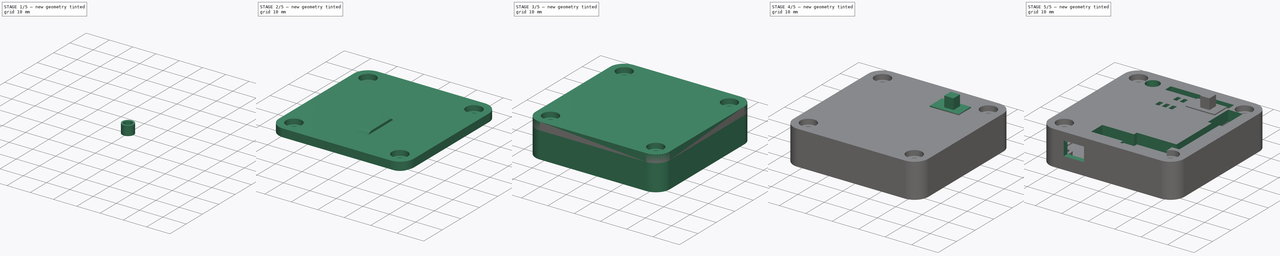
[diagram: build sequence overview — one tinted view per stage of 5, left to right]
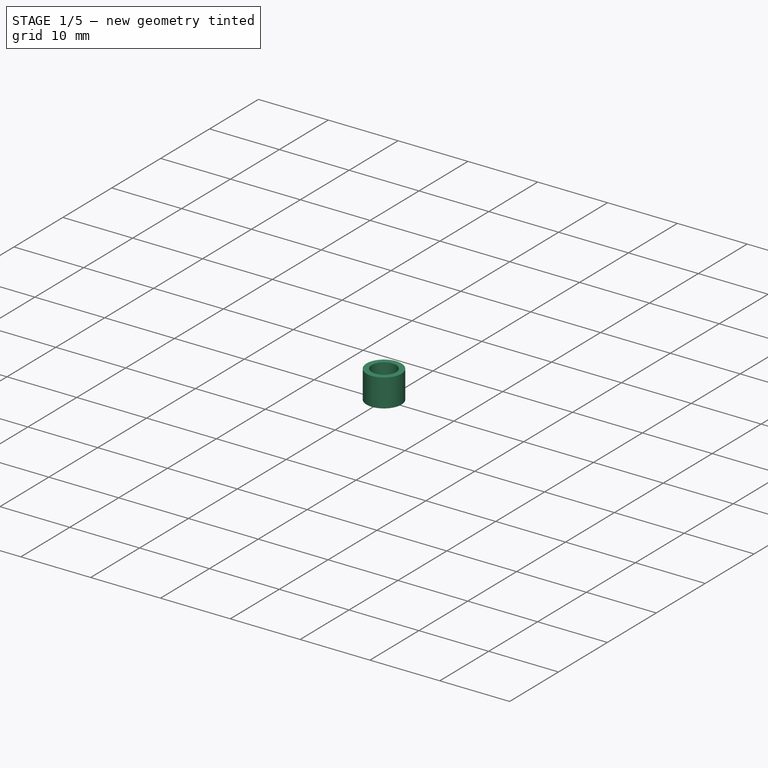
[diagram: stage 1 of 5 — iso view after this stage's code; geometry added in this stage tinted green]
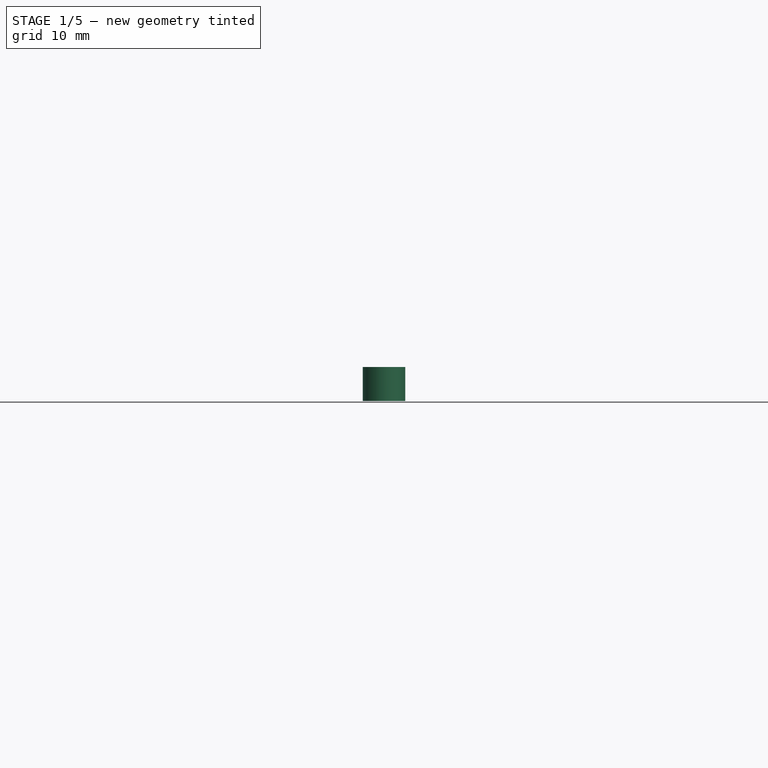
[diagram: stage 1 of 5 — front view after this stage's code; geometry added in this stage tinted green]
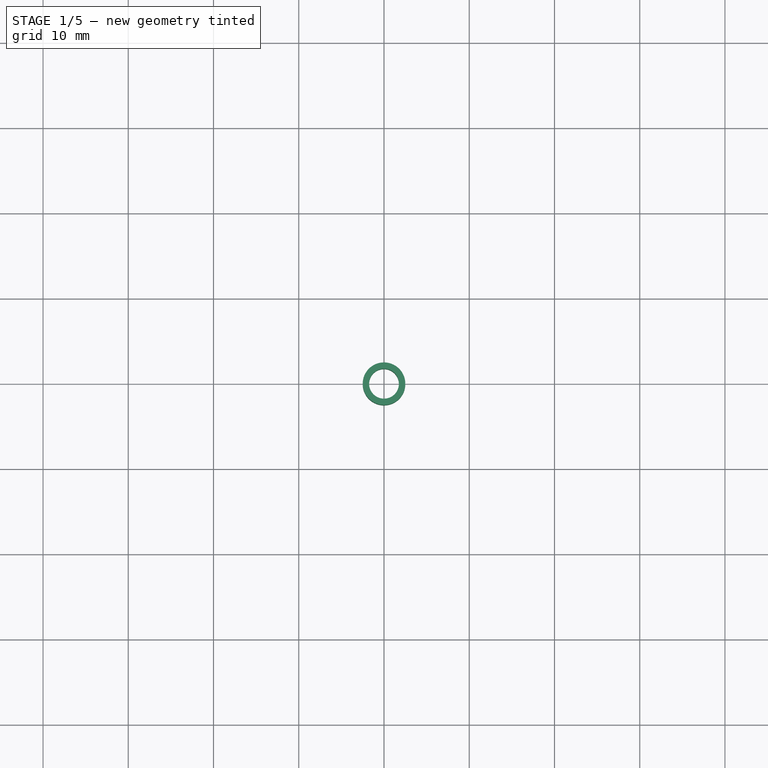
[diagram: stage 1 of 5 — top view after this stage's code; geometry added in this stage tinted green]
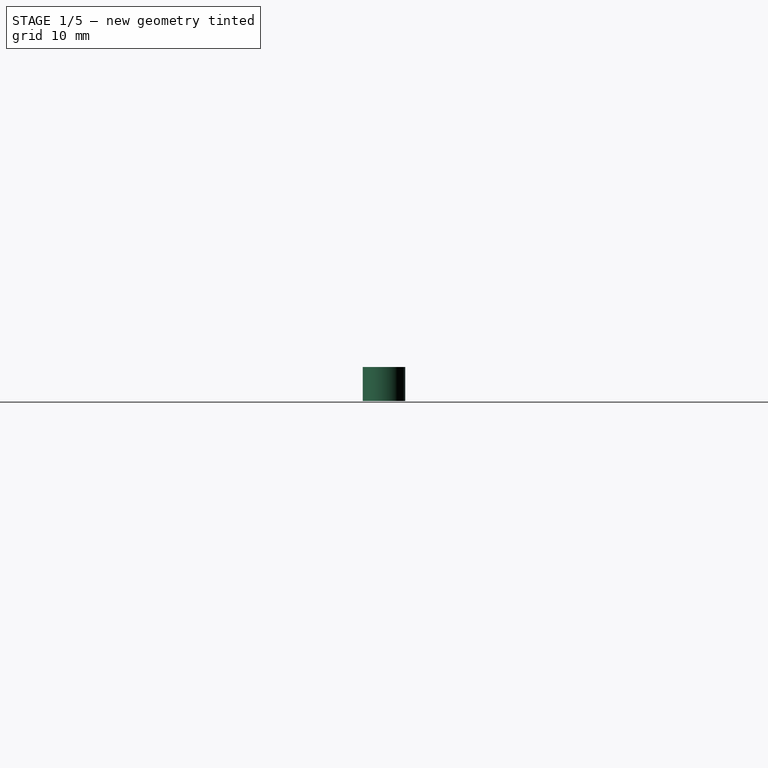
[diagram: stage 1 of 5 — right view after this stage's code; geometry added in this stage tinted green]
FCSTD DOCUMENT  (FreeCAD 0.19R24276 (Git))
Label: TigarDen
Comment: 3D Printable enclosure for the Open Source Hardware Hacking Tool, Tigard
License: CC BY-SA-4.0
LicenseURL: http://creativecommons.org/licenses/by-sa/4.0/
objects: App::Link×62, Sketcher::SketchObject×27, Part::Feature×25, PartDesign::Pocket×13, PartDesign::Pad×12, PartDesign::Body×11, App::DocumentObjectGroupPython×6, App::LinkGroup×4, Part::Cut×2, PartDesign::FeatureBase×2, PartDesign::CoordinateSystem×1, PartDesign::Hole×1
note: 120 computed .brp shape members not serialized (recipe doc carries the construction recipe); baked Part::Feature solids carry a one-line shape summary decoded from their .brp

FEATURE [PartDesign::Body] Body007  label="Shim1"
  Group = -> [Sketch018,Pad009,Sketch019,Pocket009]
  Origin = -> Origin007
  Placement = pos=(0,0,0.7) rot=(0,0,1;0rad)
  Tip = -> Pocket009
FEATURE [Sketcher::SketchObject] Sketch020  label="Shim Sketch001"
  AttachmentOffset = pos=(0,0,4.5) rot=(0,0,1;0rad)
  FullyConstrained = true
  MapMode = 5
  Placement = pos=(0,0,4.5) rot=(0,0,1;0rad)
  Support = -> [XY_Plane008]
  sketch-geometry (1):
    g0: Circle CenterX=-20 CenterY=20 CenterZ=0 NormalX=0 NormalY=0 NormalZ=1 AngleXU=0 Radius=2.5
  constraints (3):
    c: DistanceX(g-2,g0) = -20
    c: DistanceY(g-1,g0) = 20
    c: Radius(g0) = 2.5
FEATURE [PartDesign::Pad] Pad010  label="Shim2Pad"
  Direction = (1,1,1)
  Length = 4
  Length2 = 100
  Profile = -> Sketch020
  Type = 0
FEATURE [Sketcher::SketchObject] Sketch021  label="Shim Hole Sketch001"
  FullyConstrained = true
  MapMode = 5
  Placement = pos=(0,0,8.5) rot=(0,0,1;0rad)
  Support = -> [Pad010]
  sketch-geometry (1):
    g0: Circle CenterX=-20 CenterY=20 CenterZ=0 NormalX=0 NormalY=0 NormalZ=1 AngleXU=0 Radius=1.75
  constraints (3):
    c: DistanceX(g-2,g0) = -20
    c: DistanceY(g-1,g0) = 20
    c: Radius(g0) = 1.75
FEATURE [PartDesign::Pocket] Pocket010  label="Shim2Pocket"
  BaseFeature = -> Pad010
  Length = 5
  Length2 = 100
  Placement = pos=(-6.93e-14,-7.11e-14,50) rot=(0,0,1;0rad)
  Profile = -> Sketch021
  Type = 1
FEATURE [PartDesign::Body] Body008  label="Shim2"
  Group = -> [Sketch020,Pad010,Sketch021,Pocket010]
  Origin = -> Origin008
  Placement = pos=(0,0,0.7) rot=(0,0,1;1.5708rad)
  Tip = -> Pocket010
FEATURE [Sketcher::SketchObject] Sketch023  label="Shim Sketch002"
  AttachmentOffset = pos=(0,0,4.5) rot=(0,0,1;0rad)
  FullyConstrained = true
  MapMode = 5
  Placement = pos=(0,0,4.5) rot=(0,0,1;0rad)
  Support = -> [XY_Plane009]
  sketch-geometry (1):
    g0: Circle CenterX=-20 CenterY=20 CenterZ=0 NormalX=0 NormalY=0 NormalZ=1 AngleXU=0 Radius=2.5
  constraints (3):
    c: DistanceX(g-2,g0) = -20
    c: DistanceY(g-1,g0) = 20
    c: Radius(g0) = 2.5
FEATURE [PartDesign::Pad] Pad011  label="Shim3Pad"
  Direction = (1,1,1)
  Length = 4
  Length2 = 100
  Profile = -> Sketch023
  Type = 0
FEATURE [Sketcher::SketchObject] Sketch022  label="Shim Hole Sketch002"
  FullyConstrained = true
  MapMode = 5
  Placement = pos=(0,0,8.5) rot=(0,0,1;0rad)
  Support = -> [Pad011]
  sketch-geometry (1):
    g0: Circle CenterX=-20 CenterY=20 CenterZ=0 NormalX=0 NormalY=0 NormalZ=1 AngleXU=0 Radius=1.75
  constraints (3):
    c: DistanceX(g-2,g0) = -20
    c: DistanceY(g-1,g0) = 20
    c: Radius(g0) = 1.75
FEATURE [PartDesign::Pocket] Pocket011  label="Shim3Pocket"
  BaseFeature = -> Pad011
  Length = 5
  Length2 = 100
  Placement = pos=(-6.93e-14,-7.11e-14,50) rot=(0,0,1;0rad)
  Profile = -> Sketch022
  Type = 1
FEATURE [PartDesign::Body] Body009  label="Shim3"
  Group = -> [Sketch023,Pad011,Sketch022,Pocket011]
  Origin = -> Origin009
  Placement = pos=(0,0,0.7) rot=(0,0,1;3.14159rad)
  Tip = -> Pocket011
FEATURE [Sketcher::SketchObject] Sketch024  label="Shim Sketch003"
  AttachmentOffset = pos=(0,0,4.5) rot=(0,0,1;0rad)
  FullyConstrained = true
  MapMode = 5
  Placement = pos=(0,0,4.5) rot=(0,0,1;0rad)
  Support = -> [XY_Plane010]
  sketch-geometry (1):
    g0: Circle CenterX=-20 CenterY=20 CenterZ=0 NormalX=0 NormalY=0 NormalZ=1 AngleXU=0 Radius=2.5
  constraints (3):
    c: DistanceX(g-2,g0) = -20
    c: DistanceY(g-1,g0) = 20
    c: Radius(g0) = 2.5
FEATURE [PartDesign::Pad] Pad012  label="Shim4Pad"
  Direction = (1,1,1)
  Length = 4
  Length2 = 100
  Profile = -> Sketch024
  Type = 0
FEATURE [Sketcher::SketchObject] Sketch025  label="Shim Hole Sketch003"
  FullyConstrained = true
  MapMode = 5
  Placement = pos=(0,0,8.5) rot=(0,0,1;0rad)
  Support = -> [Pad012]
  sketch-geometry (1):
    g0: Circle CenterX=-20 CenterY=20 CenterZ=0 NormalX=0 NormalY=0 NormalZ=1 AngleXU=0 Radius=1.75
  constraints (3):
    c: DistanceX(g-2,g0) = -20
    c: DistanceY(g-1,g0) = 20
    c: Radius(g0) = 1.75
FEATURE [PartDesign::Pocket] Pocket012  label="Shim4Pocket"
  BaseFeature = -> Pad012
  Length = 5
  Length2 = 100
  Placement = pos=(-6.93e-14,-7.11e-14,50) rot=(0,0,1;0rad)
  Profile = -> Sketch025
  Type = 1
FEATURE [PartDesign::Body] Body010  label="Shim4"
  Group = -> [Sketch024,Pad012,Sketch025,Pocket012]
  Origin = -> Origin010
  Placement = pos=(0,0,0.7) rot=(0,0,-1;1.5708rad)
  Tip = -> Pocket012
FEATURE [Part::Feature] trajectory_line
  shape: bbox 2e-07 x 2e-07 x 80 mm, 0 faces, 0 solids (baked)
FEATURE [App::DocumentObjectGroupPython] SimpleGroup  label="LidTrajectory"  # scripted group (container) (typed FeaturePython)
  AnimationStepTime = 0
  AnimationSteps = 20
  Distance = 80
  Group = -> [trajectory_line]
  Revolutions = 0
FEATURE [Part::Feature] trajectory_line001
  shape: bbox 2e-07 x 2e-07 x 50 mm, 0 faces, 0 solids (baked)
FEATURE [App::DocumentObjectGroupPython] SimpleGroup001  label="VoltageSwitchTrajectory"  # scripted group (container) (typed FeaturePython)
  AnimationStepTime = 0
  AnimationSteps = 20
  Distance = 50
  Group = -> [trajectory_line001]
  Revolutions = 0
FEATURE [Part::Feature] trajectory_line002
  shape: bbox 2e-07 x 2e-07 x 50 mm, 0 faces, 0 solids (baked)
FEATURE [App::DocumentObjectGroupPython] BoltGroup  label="ShimGroupTrajectory"  # scripted group (container) (typed FeaturePython)
  AnimationStepTime = 0
  AnimationSteps = 20
  Distance = 50
  Group = -> [trajectory_line002]
  Revolutions = 5
FEATURE [Part::Feature] trajectory_line003
  shape: bbox 2e-07 x 2e-07 x 40 mm, 0 faces, 0 solids (baked)
FEATURE [App::DocumentObjectGroupPython] SimpleGroup003  # scripted group (container) (typed FeaturePython)
  AnimationStepTime = 0
  AnimationSteps = 20
  Distance = 40
  Group = -> [trajectory_line003]
  Revolutions = 0
FEATURE [Part::Feature] trajectory_line004
  shape: bbox 2e-07 x 2e-07 x 20 mm, 0 faces, 0 solids (baked)
FEATURE [App::DocumentObjectGroupPython] SimpleGroup004  # scripted group (container) (typed FeaturePython)
  AnimationStepTime = 0
  AnimationSteps = 20
  Distance = 20
  Group = -> [trajectory_line004]
  Revolutions = 0
FEATURE [App::DocumentObjectGroupPython] ExplodedAssembly  # scripted group (container) (typed FeaturePython)
  AnimationStep = 0
  CurrentTrajectory = -1
  Group = -> [SimpleGroup,SimpleGroup001,SimpleGroup004,BoltGroup,SimpleGroup003]
  InAnimation = false
  RemoveAllTrajectories = false
  ResetAnimation = false
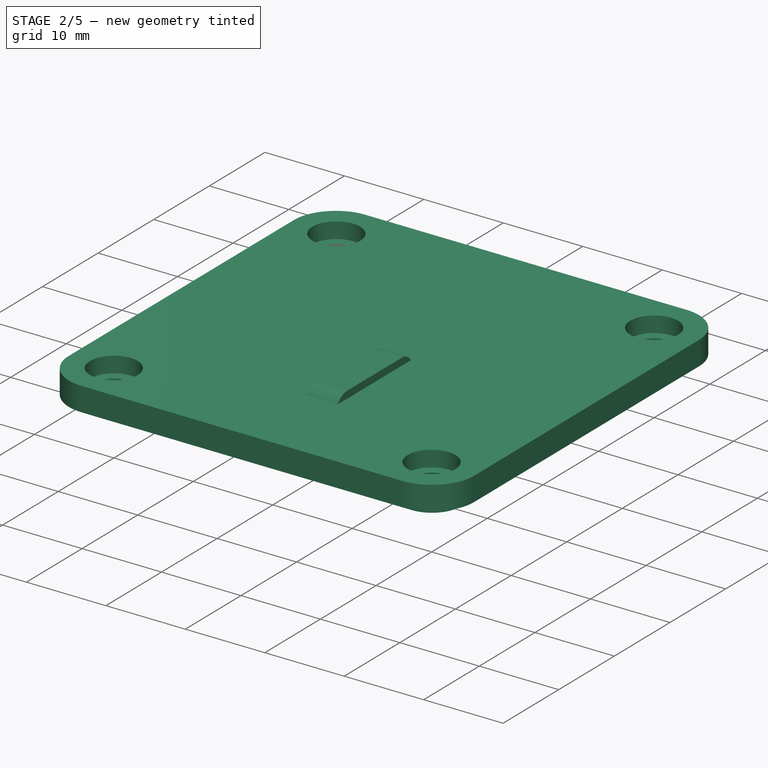
[diagram: stage 2 of 5 — iso view after this stage's code; geometry added in this stage tinted green]
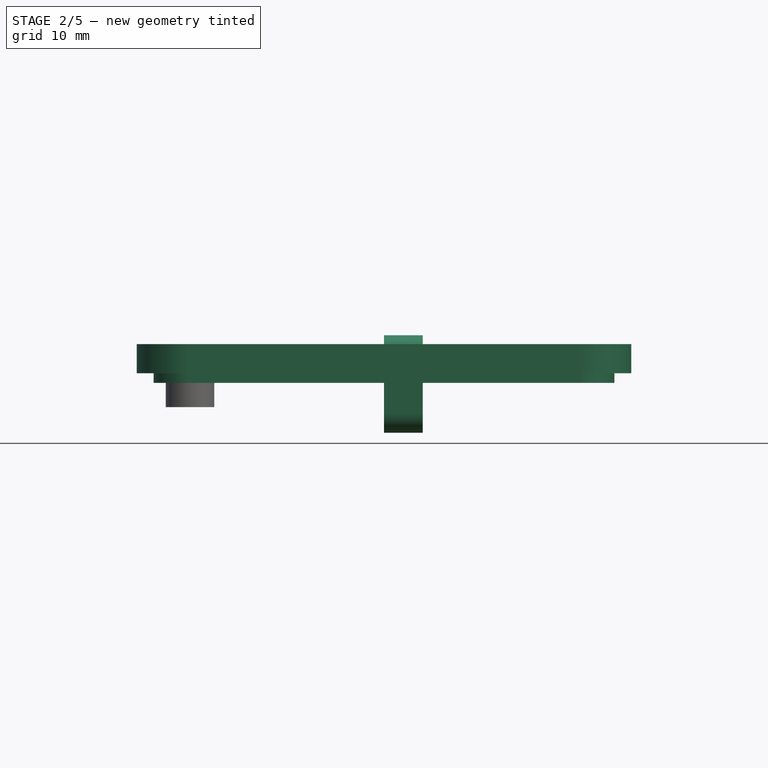
[diagram: stage 2 of 5 — front view after this stage's code; geometry added in this stage tinted green]
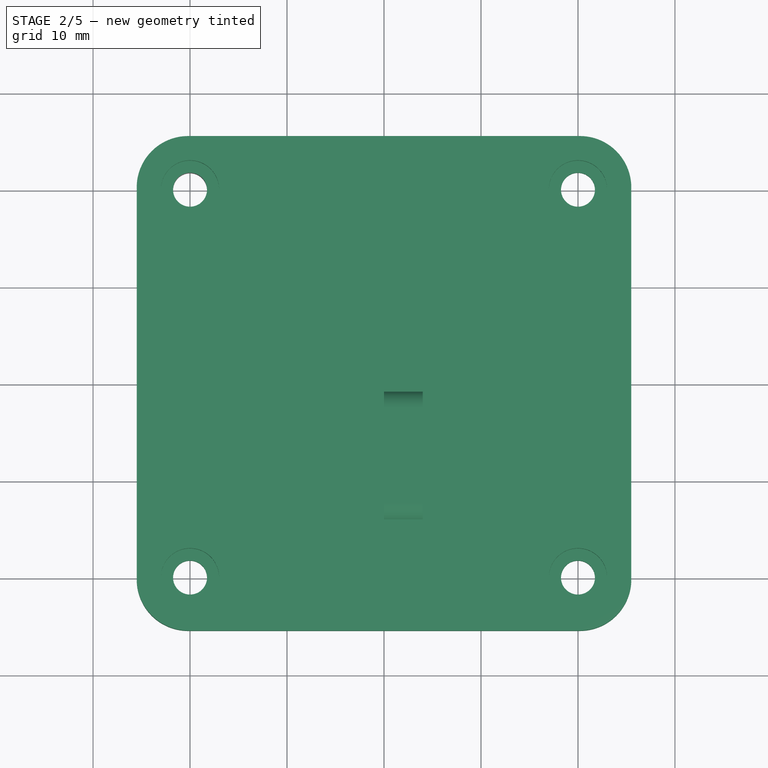
[diagram: stage 2 of 5 — top view after this stage's code; geometry added in this stage tinted green]
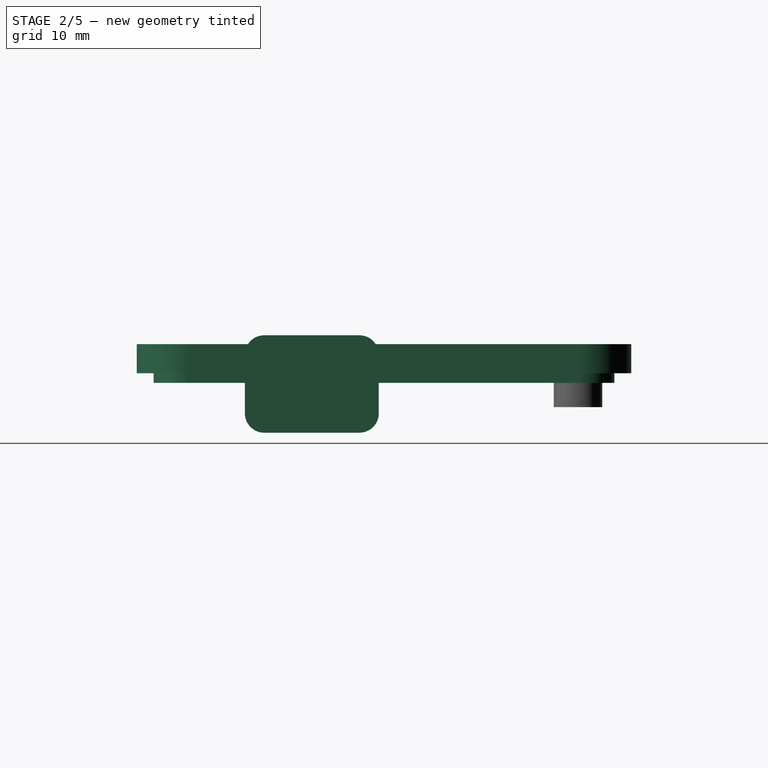
[diagram: stage 2 of 5 — right view after this stage's code; geometry added in this stage tinted green]
FEATURE [Sketcher::SketchObject] Sketch005  label="Lid Inset Sketch"
  AttachmentOffset = pos=(0,0,7) rot=(0,0,1;0rad)
  FullyConstrained = true
  MapMode = 5
  Placement = pos=(0,0,7) rot=(0,0,1;0rad)
  Support = -> [XY_Plane001]
  sketch-geometry (8):
    g0: LineSegment StartX=-20.15 StartY=23.75 StartZ=0 EndX=20.15 EndY=23.75 EndZ=0
    g1: LineSegment StartX=23.75 StartY=20.15 StartZ=0 EndX=23.75 EndY=-20.15 EndZ=0
    g2: LineSegment StartX=20.15 StartY=-23.75 StartZ=0 EndX=-20.15 EndY=-23.75 EndZ=0
    g3: LineSegment StartX=-23.75 StartY=-20.15 StartZ=0 EndX=-23.75 EndY=20.15 EndZ=0
    g4: ArcOfCircle CenterX=-20.15 CenterY=20.15 CenterZ=0 NormalX=0 NormalY=0 NormalZ=1 AngleXU=0 Radius=3.6 StartAngle=1.5708 EndAngle=3.14159
    g5: ArcOfCircle CenterX=20.15 CenterY=20.15 CenterZ=0 NormalX=0 NormalY=0 NormalZ=1 AngleXU=0 Radius=3.6 StartAngle=2e-16 EndAngle=1.5708
    g6: ArcOfCircle CenterX=20.15 CenterY=-20.15 CenterZ=0 NormalX=0 NormalY=0 NormalZ=1 AngleXU=0 Radius=3.6 StartAngle=4.71239 EndAngle=6.28319
    g7: ArcOfCircle CenterX=-20.15 CenterY=-20.15 CenterZ=0 NormalX=0 NormalY=0 NormalZ=1 AngleXU=0 Radius=3.6 StartAngle=3.14159 EndAngle=4.71239
  constraints (20):
    c: Horizontal(g0)
    c: Horizontal(g2)
    c: Vertical(g1)
    c: Vertical(g3)
    c: Distance(g-1,g0) = 23.75
    c: Distance(g-1,g2) = 23.75
    c: Distance(g-1,g1) = 23.75
    c: Distance(g-1,g3) = 23.75
    c: Tangent(g0,g4) = 1.5708
    c: Tangent(g3,g4) = 1.5708
    c: Tangent(g0,g5) = 1.5708
    c: Tangent(g1,g5) = 1.5708
    c: Tangent(g1,g6) = 1.5708
    c: Tangent(g2,g6) = 1.5708
    c: Tangent(g2,g7) = 1.5708
    c: Tangent(g3,g7) = 1.5708
    c: Radius(g4) = 3.6
    c: Equal(g4,g5)
    c: Equal(g6,g4)
    c: Equal(g4,g7)
FEATURE [PartDesign::Pad] Pad002  label="Lid Inset"
  Direction = (1,1,1)
  Length = 1
  Length2 = 100
  Profile = -> Sketch005
  Type = 0
FEATURE [Sketcher::SketchObject] Sketch006  label="Lid Sketch"
  FullyConstrained = true
  MapMode = 5
  Placement = pos=(0,0,8) rot=(0,0,1;0rad)
  Support = -> [Pad002]
  sketch-geometry (8):
    g0: LineSegment StartX=-20.2 StartY=25.5 StartZ=0 EndX=20.2 EndY=25.5 EndZ=0
    g1: LineSegment StartX=25.5 StartY=20.2 StartZ=0 EndX=25.5 EndY=-20.2 EndZ=0
    g2: LineSegment StartX=20.2 StartY=-25.5 StartZ=0 EndX=-20.2 EndY=-25.5 EndZ=0
    g3: LineSegment StartX=-25.5 StartY=-20.2 StartZ=0 EndX=-25.5 EndY=20.2 EndZ=0
    g4: ArcOfCircle CenterX=-20.2 CenterY=20.2 CenterZ=0 NormalX=0 NormalY=0 NormalZ=1 AngleXU=0 Radius=5.3 StartAngle=1.5708 EndAngle=3.14159
    g5: ArcOfCircle CenterX=20.2 CenterY=20.2 CenterZ=0 NormalX=0 NormalY=0 NormalZ=1 AngleXU=0 Radius=5.3 StartAngle=1e-16 EndAngle=1.5708
    g6: ArcOfCircle CenterX=20.2 CenterY=-20.2 CenterZ=0 NormalX=0 NormalY=0 NormalZ=1 AngleXU=0 Radius=5.3 StartAngle=4.71239 EndAngle=6.28319
    g7: ArcOfCircle CenterX=-20.2 CenterY=-20.2 CenterZ=0 NormalX=0 NormalY=0 NormalZ=1 AngleXU=0 Radius=5.3 StartAngle=3.14159 EndAngle=4.71239
  constraints (20):
    c: Horizontal(g0)
    c: Horizontal(g2)
    c: Vertical(g1)
    c: Vertical(g3)
    c: Distance(g-1,g0) = 25.5
    c: Distance(g-1,g1) = 25.5
    c: Distance(g-1,g2) = 25.5
    c: Distance(g-1,g3) = 25.5
    c: Tangent(g0,g4) = 1.5708
    c: Tangent(g3,g4) = 1.5708
    c: Radius(g4) = 5.3
    c: Tangent(g0,g5) = 1.5708
    c: Tangent(g1,g5) = 1.5708
    c: Tangent(g1,g6) = 1.5708
    c: Tangent(g2,g6) = 1.5708
    c: Tangent(g2,g7) = 1.5708
    c: Tangent(g3,g7) = 1.5708
    c: Equal(g4,g5)
    c: Equal(g4,g6)
    c: Equal(g4,g7)
FEATURE [PartDesign::Pad] Pad003  label="Lid"
  BaseFeature = -> Pad002
  Direction = (1,1,1)
  Length = 3
  Length2 = 100
  Profile = -> Sketch006
  Type = 0
FEATURE [Sketcher::SketchObject] Sketch007  label="Screw Holes Lid"
  FullyConstrained = true
  MapMode = 5
  Placement = pos=(0,0,11) rot=(0,0,1;0rad)
  Support = -> [Pad003]
  sketch-geometry (4):
    g0: Circle CenterX=-20 CenterY=20 CenterZ=0 NormalX=0 NormalY=0 NormalZ=1 AngleXU=0 Radius=1.5
    g1: Circle CenterX=20 CenterY=20 CenterZ=0 NormalX=0 NormalY=0 NormalZ=1 AngleXU=0 Radius=1.5
    g2: Circle CenterX=20 CenterY=-20 CenterZ=0 NormalX=0 NormalY=0 NormalZ=1 AngleXU=0 Radius=1.5
    g3: Circle CenterX=-20 CenterY=-20 CenterZ=0 NormalX=0 NormalY=0 NormalZ=1 AngleXU=0 Radius=1.5
  constraints (12):
    c: Radius(g0) = 1.5
    c: DistanceX(g-2,g0) = -20
    c: DistanceY(g-1,g0) = 20
    c: Equal(g0,g1)
    c: Equal(g0,g2)
    c: Equal(g0,g3)
    c: DistanceX(g-2,g1) = 20
    c: DistanceY(g-1,g1) = 20
    c: DistanceX(g-2,g2) = 20
    c: DistanceY(g-1,g2) = -20
    c: DistanceX(g-2,g3) = -20
    c: DistanceY(g-1,g3) = -20
FEATURE [PartDesign::Hole] Hole
  BaseFeature = -> Pad003
  Depth = 25
  DepthType = 1
  Diameter = 3.5
  DrillForDepth = true
  DrillPoint = 1
  DrillPointAngle = 118
  HoleCutCountersinkAngle = 90
  HoleCutCustomValues = false
  HoleCutDepth = 2
  HoleCutDiameter = 6
  HoleCutType = 1
  ModelActualThread = false
  Profile = -> Sketch007
  Tapered = false
  TaperedAngle = 90
  ThreadAngle = 0
  ThreadClass = 0
  ThreadCutOffInner = 0
  ThreadCutOffOuter = 0
  ThreadDirection = 0
  ThreadFit = 0
  ThreadPitch = 0
  ThreadSize = 0
  ThreadType = 0
  Threaded = false
FEATURE [PartDesign::Body] Body
  Group = -> [Sketch,Sketch001,Pad,Pocket,Sketch002,Sketch003,Sketch004,Pocket001,Pad004,Pocket002]
  Origin = -> Origin
  Tip = -> Pocket002
FEATURE [Sketcher::SketchObject] Sketch008
  FullyConstrained = false
  MapMode = 5
  Placement = pos=(0,0,0) rot=(-0.57735,0.57735,0.57735;4.18879rad)
  Support = -> [YZ_Plane002]
  sketch-geometry (8):
    g0: LineSegment StartX=2.5358 StartY=11.912 StartZ=0 EndX=12.3476 EndY=11.912 EndZ=0
    g1: LineSegment StartX=14.3476 StartY=9.91198 StartZ=0 EndX=14.3476 EndY=3.8669 EndZ=0
    g2: LineSegment StartX=12.3476 StartY=1.8669 StartZ=0 EndX=2.5358 EndY=1.8669 EndZ=0
    g3: LineSegment StartX=0.535801 StartY=3.8669 StartZ=0 EndX=0.535801 EndY=9.91198 EndZ=0
    g4: ArcOfCircle CenterX=2.5358 CenterY=9.91198 CenterZ=0 NormalX=0 NormalY=0 NormalZ=1 AngleXU=0 Radius=2 StartAngle=1.5708 EndAngle=3.14159
    g5: ArcOfCircle CenterX=12.3476 CenterY=9.91198 CenterZ=0 NormalX=0 NormalY=0 NormalZ=1 AngleXU=0 Radius=2 StartAngle=0 EndAngle=1.5708
    g6: ArcOfCircle CenterX=12.3476 CenterY=3.8669 CenterZ=0 NormalX=0 NormalY=0 NormalZ=1 AngleXU=0 Radius=2 StartAngle=4.71239 EndAngle=6.28319
    g7: ArcOfCircle CenterX=2.5358 CenterY=3.8669 CenterZ=0 NormalX=0 NormalY=0 NormalZ=1 AngleXU=0 Radius=2 StartAngle=3.14159 EndAngle=4.71239
  constraints (16):
    c: Horizontal(g0)
    c: Horizontal(g2)
    c: Vertical(g1)
    c: Vertical(g3)
    c: Tangent(g3,g4) = 1.5708
    c: Tangent(g0,g4) = 1.5708
    c: Tangent(g0,g5) = 1.5708
    c: Tangent(g1,g5) = 1.5708
    c: Tangent(g1,g6) = 1.5708
    c: Tangent(g2,g6) = 1.5708
    c: Tangent(g2,g7) = 1.5708
    c: Tangent(g3,g7) = 1.5708
    c: Radius(g4) = 2
    c: Equal(g4,g5)
    c: Equal(g4,g7)
    c: Equal(g4,g6)
FEATURE [PartDesign::Pad] Pad005
  Direction = (1,1,1)
  Length = 4
  Length2 = 100
  Placement = pos=(0,0,0) rot=(0.57735,0.57735,0.57735;2.0944rad)
  Profile = -> Sketch008
  Reversed = true
  Type = 0
FEATURE [PartDesign::Body] Body004  label="Lid Pocketed"
  BaseFeature = -> Cut
  Group = -> [BaseFeature001,Sketch011,Pocket005,Sketch012,Pocket006]
  Origin = -> Origin004
  Tip = -> Pocket006
FEATURE [Sketcher::SketchObject] Sketch018  label="Shim Sketch"
  AttachmentOffset = pos=(0,0,4.5) rot=(0,0,1;0rad)
  FullyConstrained = true
  MapMode = 5
  Placement = pos=(0,0,4.5) rot=(0,0,1;0rad)
  Support = -> [XY_Plane007]
  sketch-geometry (1):
    g0: Circle CenterX=-20 CenterY=20 CenterZ=0 NormalX=0 NormalY=0 NormalZ=1 AngleXU=0 Radius=2.5
  constraints (3):
    c: DistanceX(g-2,g0) = -20
    c: DistanceY(g-1,g0) = 20
    c: Radius(g0) = 2.5
FEATURE [PartDesign::Pad] Pad009  label="Shim1Pad"
  Direction = (1,1,1)
  Length = 4
  Length2 = 100
  Profile = -> Sketch018
  Type = 0
FEATURE [Sketcher::SketchObject] Sketch019  label="Shim Hole Sketch"
  FullyConstrained = true
  MapMode = 5
  Placement = pos=(0,0,8.5) rot=(0,0,1;0rad)
  Support = -> [Pad009]
  sketch-geometry (1):
    g0: Circle CenterX=-20 CenterY=20 CenterZ=0 NormalX=0 NormalY=0 NormalZ=1 AngleXU=0 Radius=1.75
  constraints (3):
    c: DistanceX(g-2,g0) = -20
    c: DistanceY(g-1,g0) = 20
    c: Radius(g0) = 1.75
FEATURE [PartDesign::Pocket] Pocket009  label="Shim1Pocket"
  BaseFeature = -> Pad009
  Length = 5
  Length2 = 100
  Placement = pos=(-6.93e-14,-7.11e-14,50) rot=(0,0,1;0rad)
  Profile = -> Sketch019
  Type = 1
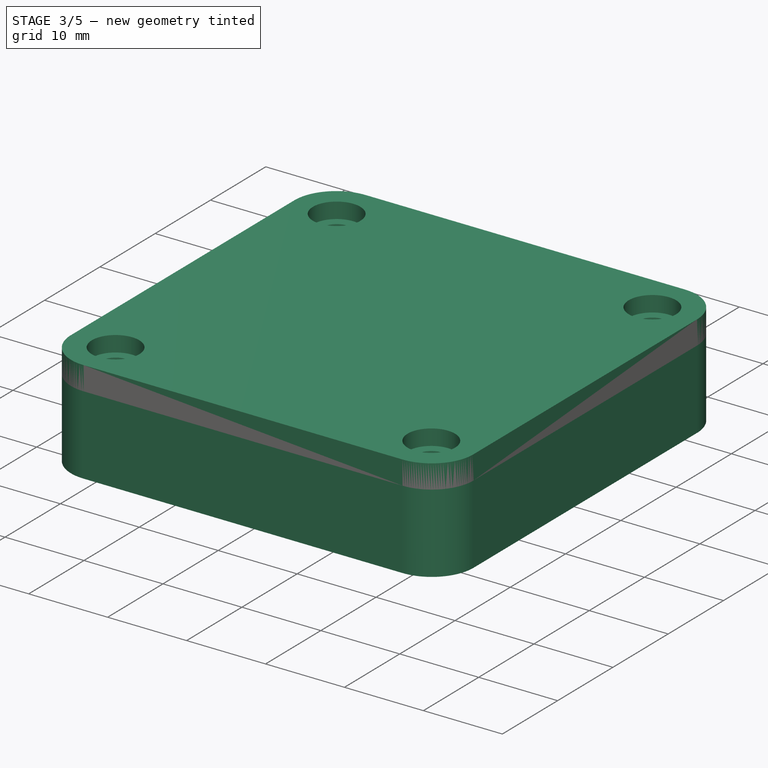
[diagram: stage 3 of 5 — iso view after this stage's code; geometry added in this stage tinted green]
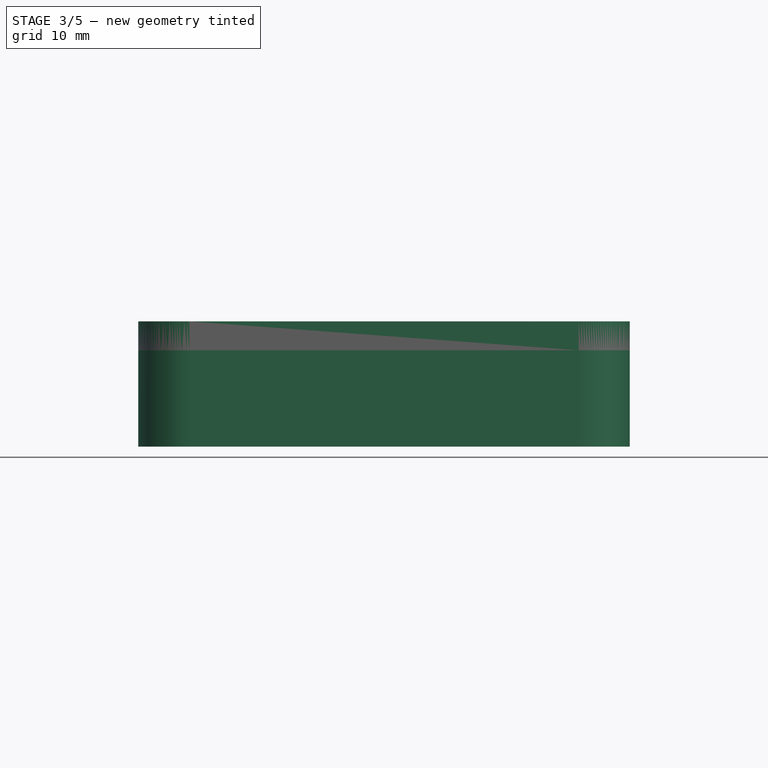
[diagram: stage 3 of 5 — front view after this stage's code; geometry added in this stage tinted green]
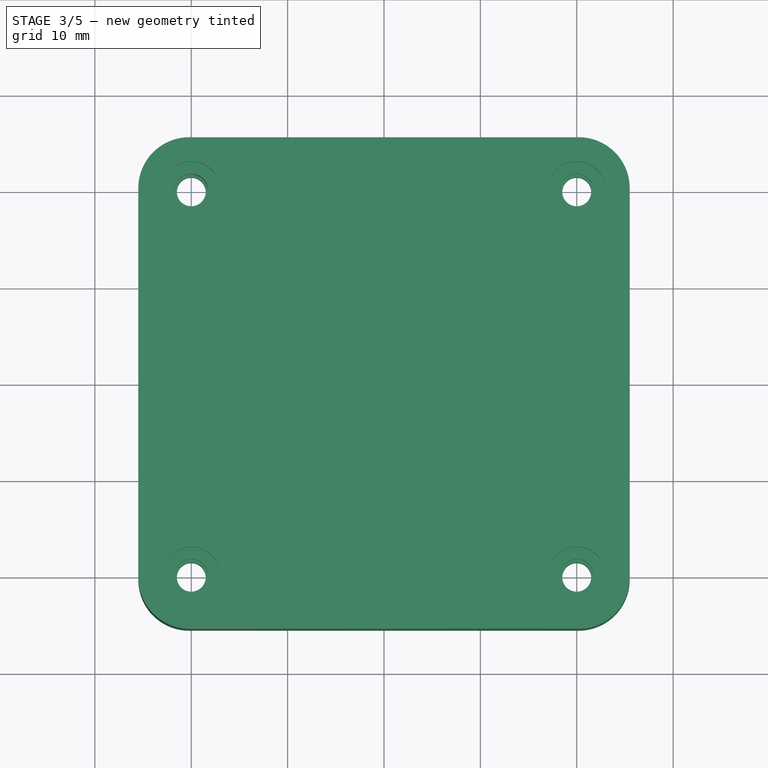
[diagram: stage 3 of 5 — top view after this stage's code; geometry added in this stage tinted green]
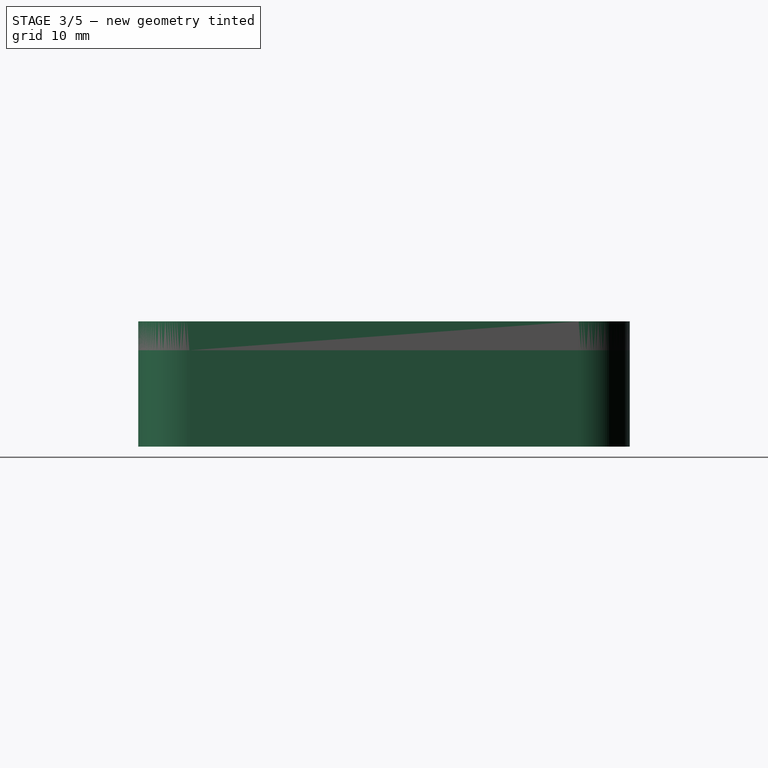
[diagram: stage 3 of 5 — right view after this stage's code; geometry added in this stage tinted green]
FEATURE [PartDesign::CoordinateSystem] Local_CS_1420
  AttacherType = Attacher::AttachEngine3D
FEATURE [Part::Feature] Pcb_1420
  Placement = pos=(-53,53,0) rot=(0,0,1;0rad)
  shape: bbox 46 x 46 x 1.6 mm, 91 faces (baked)
FEATURE [Sketcher::SketchObject] PCB_Sketch_1420
  FullyConstrained = false
  sketch-geometry (8):
    g0: LineSegment StartX=-23 StartY=-20 StartZ=0 EndX=-23 EndY=20 EndZ=0
    g1: LineSegment StartX=20 StartY=-23 StartZ=0 EndX=-20 EndY=-23 EndZ=0
    g2: LineSegment StartX=23 StartY=20 StartZ=0 EndX=23 EndY=-20 EndZ=0
    g3: LineSegment StartX=-20 StartY=23 StartZ=0 EndX=20 EndY=23 EndZ=0
    g4: ArcOfCircle CenterX=-20 CenterY=20 CenterZ=0 NormalX=0 NormalY=0 NormalZ=1 AngleXU=0 Radius=3 StartAngle=1.5708 EndAngle=3.14159
    g5: ArcOfCircle CenterX=20 CenterY=20 CenterZ=0 NormalX=0 NormalY=0 NormalZ=1 AngleXU=0 Radius=3 StartAngle=0 EndAngle=1.5708
    g6: ArcOfCircle CenterX=20 CenterY=-20 CenterZ=0 NormalX=0 NormalY=0 NormalZ=1 AngleXU=0 Radius=3 StartAngle=4.71239 EndAngle=6.28319
    g7: ArcOfCircle CenterX=-20 CenterY=-20 CenterZ=0 NormalX=0 NormalY=0 NormalZ=1 AngleXU=0 Radius=3 StartAngle=3.14159 EndAngle=4.71239
FEATURE [App::LinkGroup] Board_Geoms_1420
  ElementList = -> [Pcb_1420,Local_CS_1420,PCB_Sketch_1420]
  LinkMode = 0
FEATURE [Part::Feature] Shape  label="J6_PinHeader_2x07_P127mm_Vertical_SMD_5EEC7791"
  Placement = pos=(-4.05,-17.51,0) rot=(0,0,-1;1.5708rad)
  shape: bbox 8.89 x 5.57 x 4.4 mm, 312 faces (baked)
FEATURE [Part::Feature] Shape002  label="J1_Fusion_5EEC9037[2]"
  Placement = pos=(-23.7,-2.9,0) rot=(0,0,-1;1.5708rad)
  shape: bbox 7.9 x 8.95 x 4.2 mm, 529 faces (baked)
FEATURE [Part::Feature] Shape003  label="J2_PinHeader_1x08_P254mm_Vertical_5F30E631"
  Placement = pos=(18.78,4.06,0) rot=(0,0,1;0rad)
  shape: bbox 2.54 x 20.32 x 11.54 mm, 196 faces (baked)
FEATURE [Part::Feature] Shape004  label="U6_TSSOP_24_44x78mm_P065mm_5EEC89EE"
  Placement = pos=(9.27,2.1,0) rot=(0,0,1;0rad)
  shape: bbox 6.4 x 7.8 x 0.97 mm, 396 faces (baked)
FEATURE [Part::Feature] Shape005  label="SW2_CuK_JS202011CQN_DPDT_straight_5EEC8CD7"
  Placement = pos=(6.08,16.1,0) rot=(0,0,1;0rad)
  shape: bbox 9 x 3.61 x 8.5 mm, 178 faces (baked)
FEATURE [Part::Feature] Shape006  label="J4_PinHeader_2x04_P254mm_Vertical_5EEC90DB"
  Placement = pos=(13.7,-16.26,0) rot=(0,0,-1;1.5708rad)
  shape: bbox 10.16 x 5.08 x 11.54 mm, 172 faces (baked)
FEATURE [Part::Feature] Shape007  label="J5_PinHeader_2x05_P127mm_Vertical_SMD_5EEC7B2C"
  Placement = pos=(18.78,11.68,0) rot=(0,0,1;0rad)
  shape: bbox 5.57 x 6.35 x 4.4 mm, 224 faces (baked)
FEATURE [Part::Feature] Shape008  label="J3_PinHeader_1x09_P254mm_Vertical_5EEC791D"
  Placement = pos=(-6.62,19.3,0) rot=(0,0,1;1.5708rad)
  shape: bbox 22.86 x 2.54 x 11.54 mm, 220 faces (baked)
FEATURE [Part::Feature] Shape009  label="SW1_Part 1_5EEC7A8E"
  Placement = pos=(-18.15,7.6,0) rot=(0,0,-1;1.5708rad)
  shape: bbox 5.455 x 15.01 x 6.005 mm, 101 faces (baked)
FEATURE [App::Link] U6_TSSOP_24_44x78mm_P065mm_5EEC89EE_ln_  label="U5_TSSOP_24_44x78mm_P065mm_5EEC76EF"
  LinkPlacement = pos=(9.27,-7.9,0) rot=(0,0,1;0rad)
  LinkedObject = -> Shape004
  Placement = pos=(9.27,-7.9,0) rot=(0,0,1;0rad)
FEATURE [Part::Feature] Shape010  label="RN2_R_Array_Convex_4x0402_5EEC7FF7"
  Placement = pos=(4,-9.2,0) rot=(0,0,1;0rad)
  shape: bbox 1 x 2 x 0.35 mm, 218 faces (baked)
FEATURE [Part::Feature] Shape011  label="C16_C_0402_1005Metric_5EEC7FC5"
  Placement = pos=(3.5,-4.015,0) rot=(0,0,1;1.5708rad)
  shape: bbox 0.5 x 1 x 0.5 mm, 28 faces (baked)
FEATURE [App::Link] C16_C_0402_1005Metric_5EEC7FC5_ln_  label="C1_C_0402_1005Metric_5EEC7CD1"
  LinkPlacement = pos=(-8.25,4.35,0) rot=(0,0,1;1.5708rad)
  LinkedObject = -> Shape011
  Placement = pos=(-8.25,4.35,0) rot=(0,0,1;1.5708rad)
FEATURE [App::Link] C16_C_0402_1005Metric_5EEC7FC5_ln_001  label="C2_C_0402_1005Metric_5EEC7881"
  LinkPlacement = pos=(-13.25,4.35,0) rot=(0,0,1;1.5708rad)
  LinkedObject = -> Shape011
  Placement = pos=(-13.25,4.35,0) rot=(0,0,1;1.5708rad)
FEATURE [App::Link] C16_C_0402_1005Metric_5EEC7FC5_ln_002  label="C3_C_0402_1005Metric_5EEC8DF3"
  LinkPlacement = pos=(-8.25,8.6,0) rot=(0,0,1;1.5708rad)
  LinkedObject = -> Shape011
  Placement = pos=(-8.25,8.6,0) rot=(0,0,1;1.5708rad)
FEATURE [App::Link] C16_C_0402_1005Metric_5EEC7FC5_ln_003  label="C4_C_0402_1005Metric_5EEC995A"
  LinkPlacement = pos=(-13.25,8.615,0) rot=(0,0,1;1.5708rad)
  LinkedObject = -> Shape011
  Placement = pos=(-13.25,8.615,0) rot=(0,0,1;1.5708rad)
FEATURE [App::Link] C16_C_0402_1005Metric_5EEC7FC5_ln_004  label="C5_C_0402_1005Metric_5EEC9444"
  LinkPlacement = pos=(-10.485,-4.9,0) rot=(0,0,1;3.14159rad)
  LinkedObject = -> Shape011
  Placement = pos=(-10.485,-4.9,0) rot=(0,0,1;3.14159rad)
FEATURE [App::Link] C16_C_0402_1005Metric_5EEC7FC5_ln_005  label="C6_C_0402_1005Metric_5EEC8FCA"
  LinkPlacement = pos=(-10.485,-3.9,0) rot=(0,0,1;3.14159rad)
  LinkedObject = -> Shape011
  Placement = pos=(-10.485,-3.9,0) rot=(0,0,1;3.14159rad)
FEATURE [App::Link] C16_C_0402_1005Metric_5EEC7FC5_ln_006  label="C7_C_0402_1005Metric_5EEC954C"
  LinkPlacement = pos=(-10.485,-8.9,0) rot=(0,0,1;3.14159rad)
  LinkedObject = -> Shape011
  Placement = pos=(-10.485,-8.9,0) rot=(0,0,1;3.14159rad)
FEATURE [App::Link] C16_C_0402_1005Metric_5EEC7FC5_ln_007  label="C8_C_0402_1005Metric_5EEC96B4"
  LinkPlacement = pos=(-10.485,-7.9,0) rot=(0,0,1;3.14159rad)
  LinkedObject = -> Shape011
  Placement = pos=(-10.485,-7.9,0) rot=(0,0,1;3.14159rad)
FEATURE [App::Link] C16_C_0402_1005Metric_5EEC7FC5_ln_008  label="C9_C_0402_1005Metric_5EEC89A9"
  LinkPlacement = pos=(1,-0.635,0) rot=(0,0,1;1.5708rad)
  LinkedObject = -> Shape011
  Placement = pos=(1,-0.635,0) rot=(0,0,1;1.5708rad)
FEATURE [App::Link] C16_C_0402_1005Metric_5EEC7FC5_ln_009  label="C10_C_0402_1005Metric_5EEC9930"
  LinkPlacement = pos=(0,-0.635,0) rot=(0,0,1;1.5708rad)
  LinkedObject = -> Shape011
  Placement = pos=(0,-0.635,0) rot=(0,0,1;1.5708rad)
FEATURE [App::Link] C16_C_0402_1005Metric_5EEC7FC5_ln_010  label="C11_C_0402_1005Metric_5EEC82B6"
  LinkPlacement = pos=(-10.485,-10.9,0) rot=(0,0,1;3.14159rad)
  LinkedObject = -> Shape011
  Placement = pos=(-10.485,-10.9,0) rot=(0,0,1;3.14159rad)
FEATURE [App::Link] C16_C_0402_1005Metric_5EEC7FC5_ln_011  label="C12_C_0402_1005Metric_5EEC79C5"
  LinkPlacement = pos=(4.015,-11.15,0) rot=(0,0,1;0rad)
  LinkedObject = -> Shape011
  Placement = pos=(4.015,-11.15,0) rot=(0,0,1;0rad)
FEATURE [App::Link] C16_C_0402_1005Metric_5EEC7FC5_ln_012  label="C13_C_0402_1005Metric_5EEC989A"
  LinkPlacement = pos=(-8.5,-0.65,0) rot=(0,0,1;1.5708rad)
  LinkedObject = -> Shape011
  Placement = pos=(-8.5,-0.65,0) rot=(0,0,1;1.5708rad)
FEATURE [App::Link] C16_C_0402_1005Metric_5EEC7FC5_ln_013  label="C14_C_0402_1005Metric_5EEC8136"
  LinkPlacement = pos=(-10.485,-12.9,0) rot=(0,0,1;3.14159rad)
  LinkedObject = -> Shape011
  Placement = pos=(-10.485,-12.9,0) rot=(0,0,1;3.14159rad)
FEATURE [App::Link] C16_C_0402_1005Metric_5EEC7FC5_ln_014  label="C15_C_0402_1005Metric_5EEC97C2"
  LinkPlacement = pos=(4.015,-12.9,0) rot=(0,0,1;0rad)
  LinkedObject = -> Shape011
  Placement = pos=(4.015,-12.9,0) rot=(0,0,1;0rad)
FEATURE [App::Link] C16_C_0402_1005Metric_5EEC7FC5_ln_015  label="C17_C_0402_1005Metric_5EEC8FF4"
  LinkPlacement = pos=(-1,-0.635,0) rot=(0,0,1;1.5708rad)
  LinkedObject = -> Shape011
  Placement = pos=(-1,-0.635,0) rot=(0,0,1;1.5708rad)
FEATURE [App::Link] C16_C_0402_1005Metric_5EEC7FC5_ln_016  label="C18_C_0402_1005Metric_5EEC8F76"
  LinkPlacement = pos=(-7.5,-0.65,0) rot=(0,0,-1;1.5708rad)
  LinkedObject = -> Shape011
  Placement = pos=(-7.5,-0.65,0) rot=(0,0,-1;1.5708rad)
FEATURE [App::Link] C16_C_0402_1005Metric_5EEC7FC5_ln_017  label="C19_C_0402_1005Metric_5EEC8E47"
  LinkPlacement = pos=(6.485,6.865,0) rot=(0,0,1;0rad)
  LinkedObject = -> Shape011
  Placement = pos=(6.485,6.865,0) rot=(0,0,1;0rad)
FEATURE [App::Link] C16_C_0402_1005Metric_5EEC7FC5_ln_018  label="C20_C_0402_1005Metric_5EEC935D"
  LinkPlacement = pos=(6.515,-3.135,0) rot=(0,0,1;0rad)
  LinkedObject = -> Shape011
  Placement = pos=(6.515,-3.135,0) rot=(0,0,1;0rad)
FEATURE [App::Link] C16_C_0402_1005Metric_5EEC7FC5_ln_019  label="C21_C_0402_1005Metric_5EEC9D08"
  LinkPlacement = pos=(12.015,6.865,0) rot=(0,0,1;3.14159rad)
  LinkedObject = -> Shape011
  Placement = pos=(12.015,6.865,0) rot=(0,0,1;3.14159rad)
FEATURE [App::Link] C16_C_0402_1005Metric_5EEC7FC5_ln_020  label="C22_C_0402_1005Metric_5EEC9C33"
  LinkPlacement = pos=(11.985,-3.15,0) rot=(0,0,1;3.14159rad)
  LinkedObject = -> Shape011
  Placement = pos=(11.985,-3.15,0) rot=(0,0,1;3.14159rad)
FEATURE [App::Link] C16_C_0402_1005Metric_5EEC7FC5_ln_021  label="C23_C_0402_1005Metric_5EEC8AB1"
  LinkPlacement = pos=(-10.765,2.1,0) rot=(0,0,1;3.14159rad)
  LinkedObject = -> Shape011
  Placement = pos=(-10.765,2.1,0) rot=(0,0,1;3.14159rad)
FEATURE [App::Link] C16_C_0402_1005Metric_5EEC7FC5_ln_022  label="C24_C_0402_1005Metric_5EEC9C5D"
  LinkPlacement = pos=(-14,-0.635,0) rot=(0,0,1;1.5708rad)
  LinkedObject = -> Shape011
  Placement = pos=(-14,-0.635,0) rot=(0,0,1;1.5708rad)
FEATURE [Part::Feature] Shape012  label="D1_LED_0603_1608Metric_5EEC8164"
  Placement = pos=(-4.08,8.378,0) rot=(0,0,-1;1.5708rad)
  shape: bbox 0.8 x 1.6 x 1.1 mm, 50 faces (baked)
FEATURE [App::Link] D1_LED_0603_1608Metric_5EEC8164_ln_  label="D2_LED_0603_1608Metric_5EEC7993"
  LinkPlacement = pos=(1,8.378,0) rot=(0,0,-1;1.5708rad)
  LinkedObject = -> Shape012
  Placement = pos=(1,8.378,0) rot=(0,0,-1;1.5708rad)
FEATURE [App::Link] D1_LED_0603_1608Metric_5EEC8164_ln_001  label="D3_LED_0603_1608Metric_5EEC7843"
  LinkPlacement = pos=(1,14.474,0) rot=(0,0,-1;1.5708rad)
  LinkedObject = -> Shape012
  Placement = pos=(1,14.474,0) rot=(0,0,-1;1.5708rad)
FEATURE [App::Link] D1_LED_0603_1608Metric_5EEC8164_ln_002  label="D4_LED_0603_1608Metric_5EEC98C8"
  LinkPlacement = pos=(-1.54,14.474,0) rot=(0,0,-1;1.5708rad)
  LinkedObject = -> Shape012
  Placement = pos=(-1.54,14.474,0) rot=(0,0,-1;1.5708rad)
FEATURE [App::Link] D1_LED_0603_1608Metric_5EEC8164_ln_003  label="D5_LED_0603_1608Metric_5EEC98FE"
  LinkPlacement = pos=(-1.54,8.378,0) rot=(0,0,-1;1.5708rad)
  LinkedObject = -> Shape012
  Placement = pos=(-1.54,8.378,0) rot=(0,0,-1;1.5708rad)
FEATURE [Part::Feature] Shape013  label="FB1_L_0402_1005Metric_5EEC96E1"
  Placement = pos=(-10.485,-2.9,0) rot=(0,0,1;0rad)
  shape: bbox 1 x 0.5 x 0.5 mm, 28 faces (baked)
FEATURE [App::Link] FB1_L_0402_1005Metric_5EEC96E1_ln_  label="FB2_L_0402_1005Metric_5EEC8C9D"
  LinkPlacement = pos=(-10.485,-9.9,0) rot=(0,0,1;0rad)
  LinkedObject = -> Shape013
  Placement = pos=(-10.485,-9.9,0) rot=(0,0,1;0rad)
FEATURE [Part::Feature] Shape014  label="R1_R_0402_1005Metric_5EEC9093"
  Placement = pos=(-14,-5.4,0) rot=(0,0,-1;1.5708rad)
  shape: bbox 0.5 x 1 x 0.35 mm, 26 faces (baked)
FEATURE [App::Link] R1_R_0402_1005Metric_5EEC9093_ln_  label="R2_R_0402_1005Metric_5EEC8FA0"
  LinkPlacement = pos=(-14,-9.415,0) rot=(0,0,-1;1.5708rad)
  LinkedObject = -> Shape014
  Placement = pos=(-14,-9.415,0) rot=(0,0,-1;1.5708rad)
FEATURE [App::Link] R1_R_0402_1005Metric_5EEC9093_ln_001  label="R4_R_0402_1005Metric_5EEC8A84"
  LinkPlacement = pos=(-4.057,6.092,0) rot=(0,0,1;3.14159rad)
  LinkedObject = -> Shape014
  Placement = pos=(-4.057,6.092,0) rot=(0,0,1;3.14159rad)
FEATURE [App::Link] R1_R_0402_1005Metric_5EEC9093_ln_002  label="R5_R_0402_1005Metric_5EEC897F"
  LinkPlacement = pos=(1,6.092,0) rot=(0,0,1;3.14159rad)
  LinkedObject = -> Shape014
  Placement = pos=(1,6.092,0) rot=(0,0,1;3.14159rad)
FEATURE [App::Link] R1_R_0402_1005Metric_5EEC9093_ln_003  label="R6_R_0402_1005Metric_5EEC916B"
  LinkPlacement = pos=(-10.485,-5.9,0) rot=(0,0,1;0rad)
  LinkedObject = -> Shape014
  Placement = pos=(-10.485,-5.9,0) rot=(0,0,1;0rad)
FEATURE [App::Link] R1_R_0402_1005Metric_5EEC9093_ln_004  label="R7_R_0402_1005Metric_5EEC9471"
  LinkPlacement = pos=(-10.485,-11.9,0) rot=(0,0,1;0rad)
  LinkedObject = -> Shape014
  Placement = pos=(-10.485,-11.9,0) rot=(0,0,1;0rad)
FEATURE [App::Link] R1_R_0402_1005Metric_5EEC9093_ln_005  label="R8_R_0402_1005Metric_5EEC94A1"
  LinkPlacement = pos=(1.023,12.188,0) rot=(0,0,1;0rad)
  LinkedObject = -> Shape014
  Placement = pos=(1.023,12.188,0) rot=(0,0,1;0rad)
FEATURE [App::Link] R1_R_0402_1005Metric_5EEC9093_ln_006  label="R9_R_0402_1005Metric_5EEC9279"
  LinkPlacement = pos=(-1.54,12.188,0) rot=(0,0,1;0rad)
  LinkedObject = -> Shape014
  Placement = pos=(-1.54,12.188,0) rot=(0,0,1;0rad)
FEATURE [App::Link] R1_R_0402_1005Metric_5EEC9093_ln_007  label="R10_R_0402_1005Metric_5EEC9333"
  LinkPlacement = pos=(14.515,5.1,0) rot=(0,0,1;3.14159rad)
  LinkedObject = -> Shape014
  Placement = pos=(14.515,5.1,0) rot=(0,0,1;3.14159rad)
FEATURE [App::Link] R1_R_0402_1005Metric_5EEC9093_ln_008  label="R11_R_0402_1005Metric_5EEC8E1D"
  LinkPlacement = pos=(-1.54,6.092,0) rot=(0,0,1;0rad)
  LinkedObject = -> Shape014
  Placement = pos=(-1.54,6.092,0) rot=(0,0,1;0rad)
FEATURE [App::Link] R1_R_0402_1005Metric_5EEC9093_ln_009  label="R12_R_0402_1005Metric_5EEC8109"
  LinkPlacement = pos=(-8,0.85,0) rot=(0,0,1;0rad)
  LinkedObject = -> Shape014
  Placement = pos=(-8,0.85,0) rot=(0,0,1;0rad)
FEATURE [App::Link] R1_R_0402_1005Metric_5EEC9093_ln_010  label="R13_R_0402_1005Metric_5EEC8D1E"
  LinkPlacement = pos=(-2.25,-0.635,0) rot=(0,0,-1;1.5708rad)
  LinkedObject = -> Shape014
  Placement = pos=(-2.25,-0.635,0) rot=(0,0,-1;1.5708rad)
FEATURE [App::Link] R1_R_0402_1005Metric_5EEC9093_ln_011  label="R14_R_0402_1005Metric_5EEC8394"
  LinkPlacement = pos=(-5.985,2.35,0) rot=(0,0,1;0rad)
  LinkedObject = -> Shape014
  Placement = pos=(-5.985,2.35,0) rot=(0,0,1;0rad)
FEATURE [App::Link] R1_R_0402_1005Metric_5EEC9093_ln_012  label="R15_R_0402_1005Metric_5EEC9309"
  LinkPlacement = pos=(-3.765,2.35,0) rot=(0,0,1;0rad)
  LinkedObject = -> Shape014
  Placement = pos=(-3.765,2.35,0) rot=(0,0,1;0rad)
FEATURE [App::Link] R1_R_0402_1005Metric_5EEC9093_ln_013  label="R16_R_0402_1005Metric_5EEC82E0"
  LinkPlacement = pos=(8.62,9.85,0) rot=(0,0,1;0rad)
  LinkedObject = -> Shape014
  Placement = pos=(8.62,9.85,0) rot=(0,0,1;0rad)
FEATURE [App::Link] R1_R_0402_1005Metric_5EEC9093_ln_014  label="R17_R_0402_1005Metric_5EEC9870"
  LinkPlacement = pos=(12.015,8.1,0) rot=(0,0,1;3.14159rad)
  LinkedObject = -> Shape014
  Placement = pos=(12.015,8.1,0) rot=(0,0,1;3.14159rad)
FEATURE [App::Link] R1_R_0402_1005Metric_5EEC9093_ln_015  label="R18_R_0402_1005Metric_5EEC9141"
  LinkPlacement = pos=(4.5,-4.015,0) rot=(0,0,-1;1.5708rad)
  LinkedObject = -> Shape014
  Placement = pos=(4.5,-4.015,0) rot=(0,0,-1;1.5708rad)
FEATURE [App::Link] R1_R_0402_1005Metric_5EEC9093_ln_016  label="R19_R_0402_1005Metric_5EEC8955"
  LinkPlacement = pos=(4.015,5.6,0) rot=(0,0,1;3.14159rad)
  LinkedObject = -> Shape014
  Placement = pos=(4.015,5.6,0) rot=(0,0,1;3.14159rad)
FEATURE [App::Link] R1_R_0402_1005Metric_5EEC9093_ln_017  label="R20_R_0402_1005Metric_5EEC8DC9"
  LinkPlacement = pos=(3.5,-18.87,0) rot=(0,0,-1;1.5708rad)
  LinkedObject = -> Shape014
  Placement = pos=(3.5,-18.87,0) rot=(0,0,-1;1.5708rad)
FEATURE [App::Link] R1_R_0402_1005Metric_5EEC9093_ln_018  label="R21_R_0402_1005Metric_5EEC92DF"
  LinkPlacement = pos=(3.5,-16.385,0) rot=(0,0,1;1.5708rad)
  LinkedObject = -> Shape014
  Placement = pos=(3.5,-16.385,0) rot=(0,0,1;1.5708rad)
FEATURE [Part::Feature] Shape015  label="U3_QFN_64_1EP_9x9mm_P05mm_EP6x6mm_5EEC99E5"
  Placement = pos=(-4,-7.4,0) rot=(0,0,1;0rad)
  shape: bbox 9 x 9 x 1.1 mm, 398 faces (baked)
FEATURE [App::Link] RN2_R_Array_Convex_4x0402_5EEC7FF7_ln_  label="RN5_R_Array_Convex_4x0402_5EEC8D50"
  LinkPlacement = pos=(4,3.4,0) rot=(0,0,1;0rad)
  LinkedObject = -> Shape010
  Placement = pos=(4,3.4,0) rot=(0,0,1;0rad)
FEATURE [App::Link] RN2_R_Array_Convex_4x0402_5EEC7FF7_ln_001  label="RN6_R_Array_Convex_4x0402_5EEC9836"
  LinkPlacement = pos=(4,0.8,0) rot=(0,0,1;0rad)
  LinkedObject = -> Shape010
  Placement = pos=(4,0.8,0) rot=(0,0,1;0rad)
FEATURE [App::Link] RN2_R_Array_Convex_4x0402_5EEC7FF7_ln_002  label="RN7_R_Array_Convex_4x0402_5EEC950F"
  LinkPlacement = pos=(14.5,2.75,0) rot=(0,0,1;0rad)
  LinkedObject = -> Shape010
  Placement = pos=(14.5,2.75,0) rot=(0,0,1;0rad)
FEATURE [App::Link] RN2_R_Array_Convex_4x0402_5EEC7FF7_ln_003  label="RN8_R_Array_Convex_4x0402_5EEC97F4"
  LinkPlacement = pos=(14.5,0.15,0) rot=(0,0,1;0rad)
  LinkedObject = -> Shape010
  Placement = pos=(14.5,0.15,0) rot=(0,0,1;0rad)
FEATURE [App::Link] RN2_R_Array_Convex_4x0402_5EEC7FF7_ln_004  label="RN1_R_Array_Convex_4x0402_5EEC8BB2"
  LinkPlacement = pos=(4,-6.6,0) rot=(0,0,1;0rad)
  LinkedObject = -> Shape010
  Placement = pos=(4,-6.6,0) rot=(0,0,1;0rad)
FEATURE [App::Link] RN2_R_Array_Convex_4x0402_5EEC7FF7_ln_005  label="RN3_R_Array_Convex_4x0402_5EEC8EB5"
  LinkPlacement = pos=(14.5,-7.25,0) rot=(0,0,1;0rad)
  LinkedObject = -> Shape010
  Placement = pos=(14.5,-7.25,0) rot=(0,0,1;0rad)
FEATURE [App::Link] RN2_R_Array_Convex_4x0402_5EEC7FF7_ln_006  label="RN4_R_Array_Convex_4x0402_5EEC8039"
  LinkPlacement = pos=(14.5,-9.85,0) rot=(0,0,1;0rad)
  LinkedObject = -> Shape010
  Placement = pos=(14.5,-9.85,0) rot=(0,0,1;0rad)
FEATURE [Part::Feature] Shape016  label="Q1_SOT_23_5EEC92A9"
  Placement = pos=(-0.25,3.6,0) rot=(0,0,1;1.5708rad)
  shape: bbox 3 x 2.5 x 1.2 mm, 76 faces (baked)
FEATURE [Part::Feature] Shape017  label="U1_SOT_23_5_5EEC8E77"
  Placement = pos=(-10.75,4.85,0) rot=(0,0,1;3.14159rad)
  shape: bbox 2.8 x 2.9 x 1.55 mm, 109 faces (baked)
FEATURE [App::Link] U1_SOT_23_5_5EEC8E77_ln_  label="U2_SOT_23_5_5EEC94D1"
  LinkPlacement = pos=(-10.75,9.1,0) rot=(0,0,1;3.14159rad)
  LinkedObject = -> Shape017
  Placement = pos=(-10.75,9.1,0) rot=(0,0,1;3.14159rad)
FEATURE [Part::Feature] Shape018  label="U4_SOT_23_6_5EEC8D91"
  Placement = pos=(-4.9,-0.15,0) rot=(0,0,1;3.14159rad)
  shape: bbox 2.8 x 2.9 x 1.55 mm, 124 faces (baked)
FEATURE [Part::Feature] Shape019  label="Y1_Crystal_SMD_3225-4Pin_3.2x2.5mm_5EEC7F91"
  Placement = pos=(-11.25,-0.25,0) rot=(0,0,1;3.14159rad)
  shape: bbox 3.2 x 2.501 x 0.64 mm, 28 faces (baked)
FEATURE [App::Link] C16_C_0402_1005Metric_5EEC7FC5_ln_023  label="C25_C_0402_1005Metric_5EEC78D5"
  LinkPlacement = pos=(-20.485,-15.15,0) rot=(0,0,1;3.14159rad)
  LinkedObject = -> Shape011
  Placement = pos=(-20.485,-15.15,0) rot=(0,0,1;3.14159rad)
FEATURE [App::Link] C16_C_0402_1005Metric_5EEC7FC5_ln_024  label="C26_C_0402_1005Metric_5EEC78AB"
  LinkPlacement = pos=(-12.75,-3.15,0) rot=(0,0,-1;1.5708rad)
  LinkedObject = -> Shape011
  Placement = pos=(-12.75,-3.15,0) rot=(0,0,-1;1.5708rad)
FEATURE [App::Link] FB1_L_0402_1005Metric_5EEC96E1_ln_001  label="FB3_L_0402_1005Metric_5EEC83E8"
  LinkPlacement = pos=(-14,-3.135,0) rot=(0,0,-1;1.5708rad)
  LinkedObject = -> Shape013
  Placement = pos=(-14,-3.135,0) rot=(0,0,-1;1.5708rad)
FEATURE [App::Link] R1_R_0402_1005Metric_5EEC9093_ln_019  label="R3_R_0402_1005Metric_5EEC83BE"
  LinkPlacement = pos=(-20.5,-13.9,0) rot=(0,0,1;3.14159rad)
  LinkedObject = -> Shape014
  Placement = pos=(-20.5,-13.9,0) rot=(0,0,1;3.14159rad)
FEATURE [App::Link] R1_R_0402_1005Metric_5EEC9093_ln_020  label="R24_R_0402_1005Metric_5EEC9CDE"
  LinkPlacement = pos=(-2.75,4.365,0) rot=(0,0,-1;1.5708rad)
  LinkedObject = -> Shape014
  Placement = pos=(-2.75,4.365,0) rot=(0,0,-1;1.5708rad)
FEATURE [App::Link] R1_R_0402_1005Metric_5EEC9093_ln_021  label="R22_R_0402_1005Metric_5F30E668"
  LinkPlacement = pos=(2,-0.65,0) rot=(0,0,-1;1.5708rad)
  LinkedObject = -> Shape014
  Placement = pos=(2,-0.65,0) rot=(0,0,-1;1.5708rad)
FEATURE [App::LinkGroup] Top_1420
  ElementList = -> [Shape,Shape002,Shape003,Shape004,Shape005,Shape006,Shape007,Shape008,Shape009,U6_TSSOP_24_44x78mm_P065mm_5EEC89EE_ln_,Shape010,Shape011,C16_C_0402_1005Metric_5EEC7FC5_ln_,C16_C_0402_1005Metric_5EEC7FC5_ln_001,C16_C_0402_1005Metric_5EEC7FC5_ln_002,C16_C_0402_1005Metric_5EEC7FC5_ln_003,C16_C_0402_1005Metric_5EEC7FC5_ln_004,C16_C_0402_1005Metric_5EEC7FC5_ln_005,C16_C_0402_1005Metric_5EEC7FC5_ln_006,+62 more]
  LinkMode = 0
FEATURE [App::LinkGroup] Step_Models_1420
  ElementList = -> [Top_1420]
  LinkMode = 0
FEATURE [App::LinkGroup] Board_1420  label="tigard"
  ElementList = -> [Board_Geoms_1420,Step_Models_1420]
  LinkMode = 0
  Placement = pos=(0,0,5.1) rot=(0,0,1;0rad)
FEATURE [Sketcher::SketchObject] Sketch  label="Tikgard Sketch"
  AttachmentOffset = pos=(0,0,6) rot=(0,0,1;0rad)
  FullyConstrained = true
  MapMode = 5
  Placement = pos=(0,0,6) rot=(0,0,1;0rad)
  Support = -> [XY_Plane]
  sketch-geometry (8):
    g0: LineSegment StartX=-20.2 StartY=23.5 StartZ=0 EndX=20.2 EndY=23.5 EndZ=0
    g1: LineSegment StartX=23.5 StartY=20.2 StartZ=0 EndX=23.5 EndY=-20.2 EndZ=0
    g2: LineSegment StartX=20.2 StartY=-23.5 StartZ=0 EndX=-20.2 EndY=-23.5 EndZ=0
    g3: LineSegment StartX=-23.5 StartY=-20.2 StartZ=0 EndX=-23.5 EndY=20.2 EndZ=0
    g4: ArcOfCircle CenterX=-20.2 CenterY=20.2 CenterZ=0 NormalX=0 NormalY=0 NormalZ=1 AngleXU=0 Radius=3.3 StartAngle=1.5708 EndAngle=3.14159
    g5: ArcOfCircle CenterX=20.2 CenterY=20.2 CenterZ=0 NormalX=0 NormalY=0 NormalZ=1 AngleXU=0 Radius=3.3 StartAngle=0 EndAngle=1.5708
    g6: ArcOfCircle CenterX=20.2 CenterY=-20.2 CenterZ=0 NormalX=0 NormalY=0 NormalZ=1 AngleXU=0 Radius=3.3 StartAngle=4.71239 EndAngle=6.28319
    g7: ArcOfCircle CenterX=-20.2 CenterY=-20.2 CenterZ=0 NormalX=0 NormalY=0 NormalZ=1 AngleXU=0 Radius=3.3 StartAngle=3.14159 EndAngle=4.71239
  constraints (20):
    c: Horizontal(g0)
    c: Horizontal(g2)
    c: Vertical(g1)
    c: Vertical(g3)
    c: Distance(g-1,g2) = 23.5
    c: Distance(g-1,g3) = 23.5
    c: Tangent(g0,g4) = 1.5708
    c: Tangent(g3,g4) = 1.5708
    c: Tangent(g0,g5) = 1.5708
    c: Tangent(g1,g5) = 1.5708
    c: Tangent(g1,g6) = 1.5708
    c: Tangent(g2,g6) = 1.5708
    c: Tangent(g2,g7) = 1.5708
    c: Tangent(g3,g7) = 1.5708
    c: Radius(g4) = 3.3
    c: Radius(g6) = 3.3
    c: Radius(g7) = 3.3
    c: Distance(g3,g1) = 47
    c: Distance(g0,g2) = 47
    c: Radius(g5) = 3.3
FEATURE [Sketcher::SketchObject] Sketch001  label="Out Wall Sketch"
  FullyConstrained = true
  MapMode = 5
  Support = -> [XY_Plane]
  sketch-geometry (8):
    g0: LineSegment StartX=-20.2 StartY=25.5 StartZ=0 EndX=20.2 EndY=25.5 EndZ=0
    g1: LineSegment StartX=25.5 StartY=20.2 StartZ=0 EndX=25.5 EndY=-20.2 EndZ=0
    g2: LineSegment StartX=20.2 StartY=-25.5 StartZ=0 EndX=-20.2 EndY=-25.5 EndZ=0
    g3: LineSegment StartX=-25.5 StartY=-20.2 StartZ=0 EndX=-25.5 EndY=20.2 EndZ=0
    g4: ArcOfCircle CenterX=-20.2 CenterY=20.2 CenterZ=0 NormalX=0 NormalY=0 NormalZ=1 AngleXU=0 Radius=5.3 StartAngle=1.5708 EndAngle=3.14159
    g5: ArcOfCircle CenterX=-20.2 CenterY=-20.2 CenterZ=0 NormalX=0 NormalY=0 NormalZ=1 AngleXU=0 Radius=5.3 StartAngle=3.14159 EndAngle=4.71239
    g6: ArcOfCircle CenterX=20.2 CenterY=-20.2 CenterZ=0 NormalX=0 NormalY=0 NormalZ=1 AngleXU=0 Radius=5.3 StartAngle=4.71239 EndAngle=6.28319
    g7: ArcOfCircle CenterX=20.2 CenterY=20.2 CenterZ=0 NormalX=0 NormalY=0 NormalZ=1 AngleXU=0 Radius=5.3 StartAngle=1e-16 EndAngle=1.5708
  constraints (20):
    c: Horizontal(g0)
    c: Horizontal(g2)
    c: Vertical(g1)
    c: Vertical(g3)
    c: Tangent(g0,g4) = 1.5708
    c: Tangent(g3,g4) = 1.5708
    c: Tangent(g3,g5) = 1.5708
    c: Tangent(g2,g5) = 1.5708
    c: Tangent(g2,g6) = 1.5708
    c: Tangent(g1,g6) = 1.5708
    c: Tangent(g0,g7) = 1.5708
    c: Tangent(g1,g7) = 1.5708
    c: Radius(g4) = 5.3
    c: Radius(g7) = 5.3
    c: Radius(g6) = 5.3
    c: Radius(g5) = 5.3
    c: Distance(g0,g2) = 51
    c: Distance(g3,g1) = 51
    c: Distance(g-1,g0) = 25.5
    c: Distance(g-1,g1) = 25.5
FEATURE [PartDesign::Pad] Pad  label="Base"
  Direction = (1,1,1)
  Length = 10
  Length2 = 100
  Profile = -> Sketch001
  Type = 0
FEATURE [PartDesign::Pocket] Pocket  label="Tigard Cutout"
  BaseFeature = -> Pad
  Length = 9
  Length2 = 100
  Midplane = true
  Profile = -> Sketch
  Type = 0
FEATURE [Sketcher::SketchObject] Sketch002  label="Standoff Sketch"
  FullyConstrained = true
  MapMode = 5
  Placement = pos=(0,0,1.5) rot=(0,0,1;0rad)
  Support = -> [Pocket]
  sketch-geometry (4):
    g0: Circle CenterX=-20 CenterY=20 CenterZ=0 NormalX=0 NormalY=0 NormalZ=1 AngleXU=0 Radius=2.5
    g1: Circle CenterX=20 CenterY=20 CenterZ=0 NormalX=0 NormalY=0 NormalZ=1 AngleXU=0 Radius=2.5
    g2: Circle CenterX=20 CenterY=-20 CenterZ=0 NormalX=0 NormalY=0 NormalZ=1 AngleXU=0 Radius=2.5
    g3: Circle CenterX=-20 CenterY=-20 CenterZ=0 NormalX=0 NormalY=0 NormalZ=1 AngleXU=0 Radius=2.5
  constraints (12):
    c: Distance(g0,g-2) = 20
    c: Distance(g0,g-1) = 20
    c: Radius(g0) = 2.5
    c: Equal(g0,g1)
    c: Equal(g0,g3)
    c: Equal(g1,g2)
    c: DistanceX(g-2,g1) = 20
    c: DistanceY(g-1,g1) = 20
    c: DistanceY(g-1,g2) = -20
    c: DistanceX(g-2,g2) = 20
    c: DistanceX(g-2,g3) = -20
    c: DistanceY(g-1,g3) = -20
FEATURE [Sketcher::SketchObject] Sketch003  label="Screw Holes Sketch"
  FullyConstrained = true
  MapMode = 5
  Placement = pos=(0,0,3.5) rot=(0,0,1;0rad)
  sketch-geometry (4):
    g0: Circle CenterX=-20 CenterY=20 CenterZ=0 NormalX=0 NormalY=0 NormalZ=1 AngleXU=0 Radius=1.5
    g1: Circle CenterX=20 CenterY=20 CenterZ=0 NormalX=0 NormalY=0 NormalZ=1 AngleXU=0 Radius=1.5
    g2: Circle CenterX=20 CenterY=-20 CenterZ=0 NormalX=0 NormalY=0 NormalZ=1 AngleXU=0 Radius=1.5
    g3: Circle CenterX=-20 CenterY=-20 CenterZ=0 NormalX=0 NormalY=0 NormalZ=1 AngleXU=0 Radius=1.5
  constraints (12):
    c: DistanceX(g-2,g0) = -20
    c: Distance(g0,g-1) = 20
    c: Radius(g0) = 1.5
    c: Equal(g0,g1)
    c: Equal(g0,g2)
    c: Equal(g3,g2)
    c: Distance(g3,g-1) = 20
    c: Distance(g3,g-2) = 20
    c: Distance(g2,g-2) = 20
    c: Distance(g2,g-1) = 20
    c: Distance(g1,g-2) = 20
    c: Distance(g1,g-1) = 20
FEATURE [Sketcher::SketchObject] Sketch004  label="Base Ridge Sketch"
  FullyConstrained = true
  MapMode = 5
  Placement = pos=(0,0,10) rot=(0,0,1;0rad)
  Support = -> [Pocket]
  sketch-geometry (8):
    g0: LineSegment StartX=-20.25 StartY=24.25 StartZ=0 EndX=20.25 EndY=24.25 EndZ=0
    g1: LineSegment StartX=24.25 StartY=20.25 StartZ=0 EndX=24.25 EndY=-20.25 EndZ=0
    g2: LineSegment StartX=20.25 StartY=-24.25 StartZ=0 EndX=-20.25 EndY=-24.25 EndZ=0
    g3: LineSegment StartX=-24.25 StartY=-20.25 StartZ=0 EndX=-24.25 EndY=20.25 EndZ=0
    g4: ArcOfCircle CenterX=-20.25 CenterY=20.25 CenterZ=0 NormalX=0 NormalY=0 NormalZ=1 AngleXU=0 Radius=4 StartAngle=1.5708 EndAngle=3.14159
    g5: ArcOfCircle CenterX=20.25 CenterY=20.25 CenterZ=0 NormalX=0 NormalY=0 NormalZ=1 AngleXU=0 Radius=4 StartAngle=0 EndAngle=1.5708
    g6: ArcOfCircle CenterX=20.25 CenterY=-20.25 CenterZ=0 NormalX=0 NormalY=0 NormalZ=1 AngleXU=0 Radius=4 StartAngle=4.71239 EndAngle=6.28319
    g7: ArcOfCircle CenterX=-20.25 CenterY=-20.25 CenterZ=0 NormalX=0 NormalY=0 NormalZ=1 AngleXU=0 Radius=4 StartAngle=3.14159 EndAngle=4.71239
  constraints (20):
    c: Horizontal(g0)
    c: Horizontal(g2)
    c: Vertical(g1)
    c: Vertical(g3)
    c: Distance(g-1,g2) = 24.25
    c: Distance(g-1,g1) = 24.25
    c: Distance(g-1,g0) = 24.25
    c: Distance(g-1,g3) = 24.25
    c: Tangent(g0,g4) = 1.5708
    c: Tangent(g3,g4) = 1.5708
    c: Tangent(g0,g5) = 1.5708
    c: Tangent(g1,g5) = 1.5708
    c: Tangent(g1,g6) = 1.5708
    c: Tangent(g2,g6) = 1.5708
    c: Tangent(g2,g7) = 1.5708
    c: Tangent(g3,g7) = 1.5708
    c: Radius(g4) = 4
    c: Equal(g4,g5)
    c: Equal(g6,g4)
    c: Equal(g7,g4)
FEATURE [PartDesign::Pocket] Pocket001  label="Base Ridge"
  BaseFeature = -> Pocket
  Length = 2
  Length2 = 100
  Midplane = true
  Profile = -> Sketch004
  Type = 0
FEATURE [PartDesign::Body] Body001  label="Top"
  Group = -> [Sketch005,Pad002,Sketch006,Pad003,Sketch007,Hole]
  Origin = -> Origin001
  Placement = pos=(0,0,2) rot=(0,0,1;0rad)
  Tip = -> Hole
FEATURE [PartDesign::Pad] Pad004  label="Standoff"
  BaseFeature = -> Pocket001
  Direction = (1,1,1)
  Length = 2
  Length2 = 100
  Profile = -> Sketch002
  Type = 0
FEATURE [PartDesign::Pocket] Pocket002  label="Screw Holes"
  BaseFeature = -> Pad004
  Length = 5
  Length2 = 100
  Profile = -> Sketch003
  Type = 1
FEATURE [PartDesign::Body] Body003  label="Body Pocketed"
  BaseFeature = -> Cut001
  Group = -> [BaseFeature,Sketch009,Pocket003,Sketch010,Pocket004]
  Origin = -> Origin003
  Tip = -> Pocket004
FEATURE [Part::Cut] Cut  label="USB-C Lid Cut"
  Base = -> Body001
  Tool = -> Body002
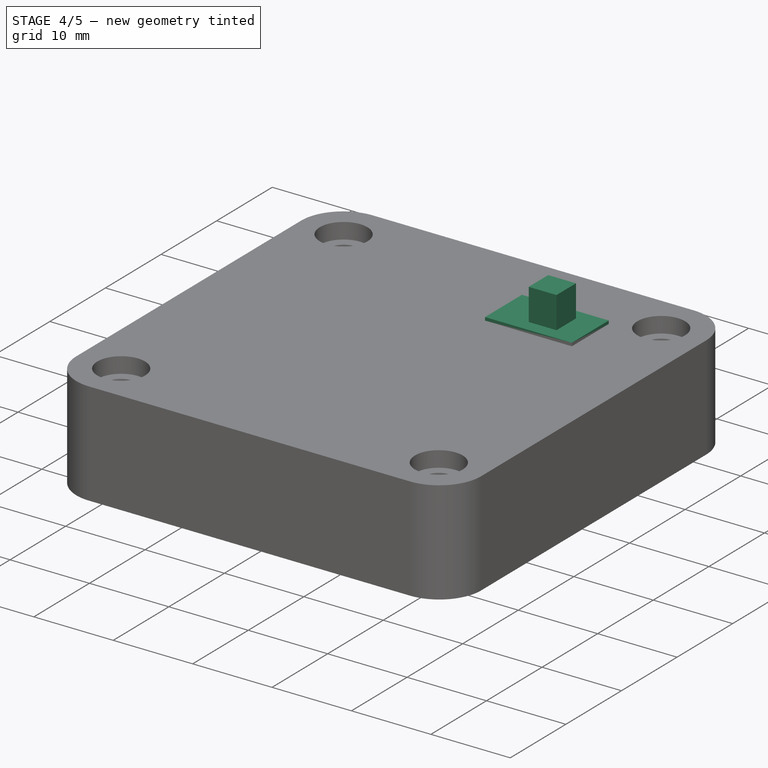
[diagram: stage 4 of 5 — iso view after this stage's code; geometry added in this stage tinted green]
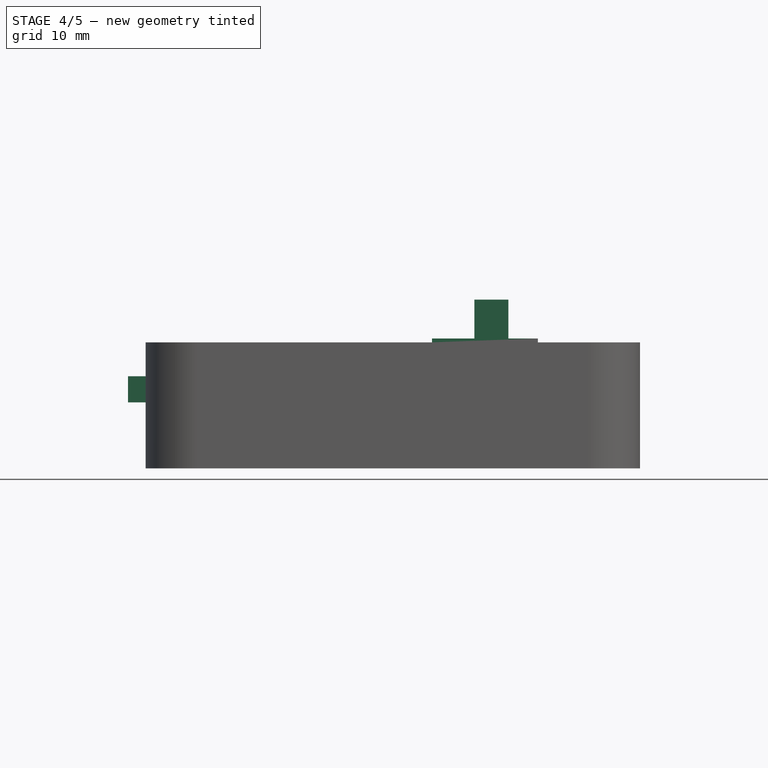
[diagram: stage 4 of 5 — front view after this stage's code; geometry added in this stage tinted green]
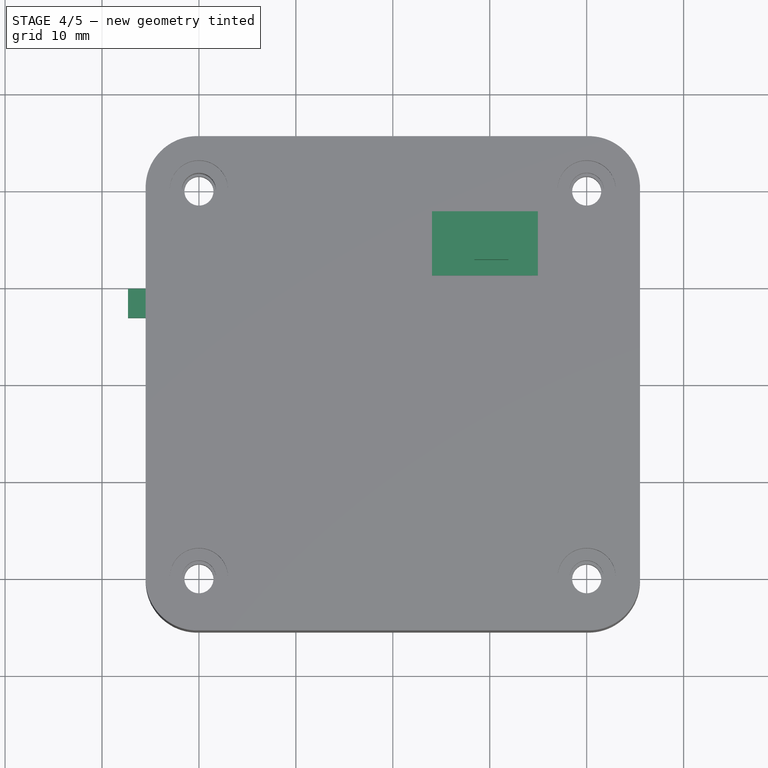
[diagram: stage 4 of 5 — top view after this stage's code; geometry added in this stage tinted green]
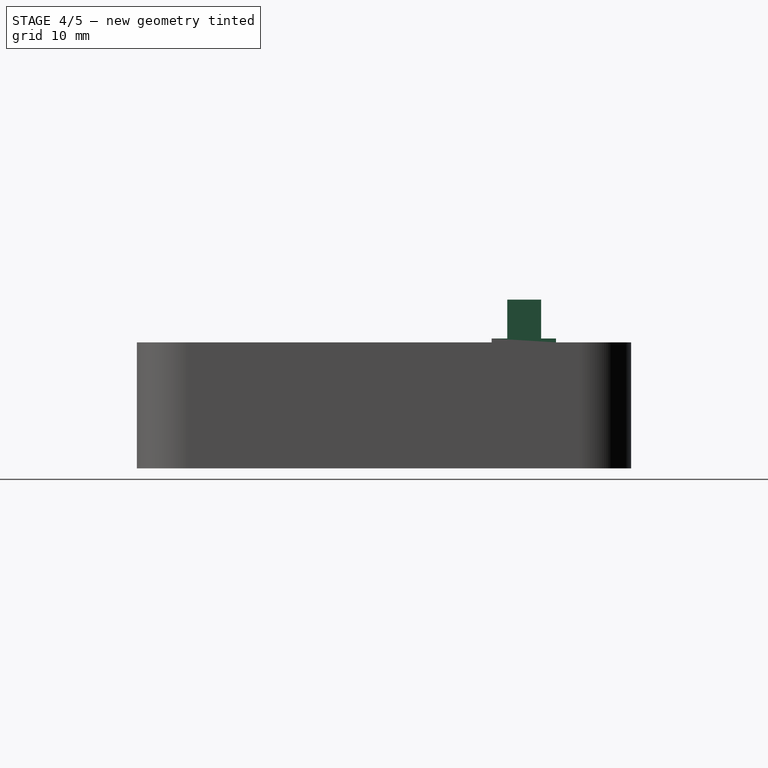
[diagram: stage 4 of 5 — right view after this stage's code; geometry added in this stage tinted green]
FEATURE [PartDesign::Body] Body002  label="USB-C Cutter"
  Group = -> [Sketch008,Pad005]
  Origin = -> Origin002
  Placement = pos=(-26,0,0) rot=(0,0,1;0rad)
  Tip = -> Pad005
FEATURE [Sketcher::SketchObject] Sketch013
  AttachmentOffset = pos=(0,0,6) rot=(0,0,1;0rad)
  FullyConstrained = false
  MapMode = 5
  Placement = pos=(0,0,6) rot=(0,0,1;0rad)
  Support = -> [XY_Plane005]
  sketch-geometry (12):
    g0: LineSegment StartX=-20.1185 StartY=14.8189 StartZ=0 EndX=-23.3185 EndY=14.8189 EndZ=0
    g1: LineSegment StartX=-23.3185 StartY=14.8189 StartZ=0 EndX=-23.3185 EndY=9.81891 EndZ=0
    g2: LineSegment StartX=-23.3185 StartY=9.81891 StartZ=0 EndX=-27.3185 EndY=9.81891 EndZ=0
    g3: LineSegment StartX=-27.3185 StartY=9.81891 StartZ=0 EndX=-27.3185 EndY=6.81891 EndZ=0
    g4: LineSegment StartX=-27.3185 StartY=6.81891 StartZ=0 EndX=-23.3185 EndY=6.81891 EndZ=0
    g5: LineSegment StartX=-23.3185 StartY=6.81891 StartZ=0 EndX=-23.3185 EndY=1.81891 EndZ=0
    g6: LineSegment StartX=-23.3185 StartY=1.81891 StartZ=0 EndX=-20.1185 EndY=1.81891 EndZ=0
    g7: LineSegment StartX=-20.1185 StartY=14.8189 StartZ=0 EndX=-20.1185 EndY=9.41668 EndZ=0
    g8: LineSegment StartX=-20.1185 StartY=9.41668 StartZ=0 EndX=-22.1185 EndY=9.41668 EndZ=0
    g9: LineSegment StartX=-22.1185 StartY=9.41668 StartZ=0 EndX=-22.1185 EndY=7.41668 EndZ=0
    g10: LineSegment StartX=-22.1185 StartY=7.41668 StartZ=0 EndX=-20.1185 EndY=7.41668 EndZ=0
    g11: LineSegment StartX=-20.1185 StartY=7.41668 StartZ=0 EndX=-20.1185 EndY=1.81891 EndZ=0
  constraints (32):
    c: Horizontal(g0)
    c: Vertical(g1)
    c: Horizontal(g2)
    c: Vertical(g3)
    c: Coincident(g4,g3)
    c: Horizontal(g4)
    c: Coincident(g5,g4)
    c: Vertical(g5)
    c: Distance(g5) = 5
    c: Distance(g3) = 3
    c: Coincident(g2,g3)
    c: Coincident(g2,g1)
    c: Coincident(g1,g0)
    c: Distance(g2) = 4
    c: Equal(g4,g2)
    c: Equal(g1,g5)
    c: Distance(g0) = 3.2
    c: Coincident(g6,g5)
    c: Horizontal(g6)
    c: Equal(g0,g6)
    c: Coincident(g7,g0)
    c: Coincident(g11,g6)
    c: Horizontal(g8)
    c: Coincident(g9,g8)
    c: Vertical(g9)
    c: Coincident(g10,g9)
    c: Horizontal(g10)
    c: Distance(g9) = 2
    c: Distance(g8) = 2
    c: Coincident(g7,g8)
    c: Coincident(g11,g10)
    c: Tangent(g7,g11)
FEATURE [PartDesign::Pad] Pad006
  Direction = (1,1,1)
  Length = 3.5
  Length2 = 100
  Profile = -> Sketch013
  Type = 0
FEATURE [Sketcher::SketchObject] Sketch014
  FullyConstrained = false
  MapMode = 5
  Placement = pos=(0,0,6) rot=(1,0,0;3.14159rad)
  Support = -> [Pad006]
  sketch-geometry (4):
    g0: LineSegment StartX=-28.4795 StartY=-6.15007 StartZ=0 EndX=-23.3232 EndY=-6.15007 EndZ=0
    g1: LineSegment StartX=-23.3232 StartY=-6.15007 StartZ=0 EndX=-23.3232 EndY=-10.6713 EndZ=0
    g2: LineSegment StartX=-23.3232 StartY=-10.6713 StartZ=0 EndX=-28.4795 EndY=-10.6713 EndZ=0
    g3: LineSegment StartX=-28.4795 StartY=-10.6713 StartZ=0 EndX=-28.4795 EndY=-6.15007 EndZ=0
  constraints (8):
    c: Coincident(g0,g1)
    c: Coincident(g1,g2)
    c: Coincident(g2,g3)
    c: Coincident(g3,g0)
    c: Horizontal(g0)
    c: Horizontal(g2)
    c: Vertical(g1)
    c: Vertical(g3)
FEATURE [PartDesign::Pocket] Pocket007
  BaseFeature = -> Pad006
  Length = 0.8
  Length2 = 100
  Placement = pos=(0,0,50) rot=(0,0,1;0rad)
  Profile = -> Sketch014
  Type = 0
FEATURE [PartDesign::Body] Body005  label="Voltage Switch"
  Group = -> [Sketch013,Pad006,Sketch014,Pocket007]
  Origin = -> Origin005
  Placement = pos=(0,0,-0.4) rot=(0,0,1;0rad)
  Tip = -> Pocket007
FEATURE [Sketcher::SketchObject] Sketch015  label="Switch BaseSketch"
  AttachmentOffset = pos=(0,0,13) rot=(0,0,1;0rad)
  FullyConstrained = false
  MapMode = 5
  Placement = pos=(0,0,13) rot=(0,0,1;0rad)
  Support = -> [XY_Plane006]
  sketch-geometry (4):
    g0: LineSegment StartX=4.0378 StartY=17.7452 StartZ=0 EndX=14.9698 EndY=17.7452 EndZ=0
    g1: LineSegment StartX=14.9698 StartY=17.7452 StartZ=0 EndX=14.9698 EndY=11.1067 EndZ=0
    g2: LineSegment StartX=14.9698 StartY=11.1067 StartZ=0 EndX=4.0378 EndY=11.1067 EndZ=0
    g3: LineSegment StartX=4.0378 StartY=11.1067 StartZ=0 EndX=4.0378 EndY=17.7452 EndZ=0
  constraints (8):
    c: Coincident(g0,g1)
    c: Coincident(g1,g2)
    c: Coincident(g2,g3)
    c: Coincident(g3,g0)
    c: Horizontal(g0)
    c: Horizontal(g2)
    c: Vertical(g1)
    c: Vertical(g3)
FEATURE [PartDesign::Pad] Pad007  label="Switch Base"
  Direction = (1,1,1)
  Length = 0.4
  Length2 = 100
  Profile = -> Sketch015
  Type = 0
FEATURE [Sketcher::SketchObject] Sketch016  label="Switch Piller Sketch"
  FullyConstrained = false
  MapMode = 5
  Placement = pos=(0,0,13.4) rot=(0,0,1;0rad)
  Support = -> [Pad007]
  sketch-geometry (4):
    g0: LineSegment StartX=8.41538 StartY=16.209 StartZ=0 EndX=11.9154 EndY=16.209 EndZ=0
    g1: LineSegment StartX=11.9154 StartY=16.209 StartZ=0 EndX=11.9154 EndY=12.709 EndZ=0
    g2: LineSegment StartX=11.9154 StartY=12.709 StartZ=0 EndX=8.41538 EndY=12.709 EndZ=0
    g3: LineSegment StartX=8.41538 StartY=12.709 StartZ=0 EndX=8.41538 EndY=16.209 EndZ=0
  constraints (10):
    c: Coincident(g0,g1)
    c: Coincident(g1,g2)
    c: Coincident(g2,g3)
    c: Coincident(g3,g0)
    c: Horizontal(g0)
    c: Horizontal(g2)
    c: Vertical(g1)
    c: Vertical(g3)
    c: Distance(g1) = 3.5
    c: Distance(g0) = 3.5
FEATURE [PartDesign::Pad] Pad008  label="Switch Pillar"
  BaseFeature = -> Pad007
  Direction = (1,1,1)
  Length = 4
  Length2 = 100
  Profile = -> Sketch016
  Type = 0
FEATURE [Sketcher::SketchObject] Sketch017  label="Switch Hole Sketch"
  FullyConstrained = false
  MapMode = 5
  Placement = pos=(0,0,13) rot=(1,0,0;3.14159rad)
  Support = -> [Pad008]
  sketch-geometry (4):
    g0: LineSegment StartX=9.13506 StartY=-13.4023 StartZ=0 EndX=11.1351 EndY=-13.4023 EndZ=0
    g1: LineSegment StartX=11.1351 StartY=-13.4023 StartZ=0 EndX=11.1351 EndY=-15.4023 EndZ=0
    g2: LineSegment StartX=11.1351 StartY=-15.4023 StartZ=0 EndX=9.13506 EndY=-15.4023 EndZ=0
    g3: LineSegment StartX=9.13506 StartY=-15.4023 StartZ=0 EndX=9.13506 EndY=-13.4023 EndZ=0
  constraints (10):
    c: Coincident(g0,g1)
    c: Coincident(g1,g2)
    c: Coincident(g2,g3)
    c: Coincident(g3,g0)
    c: Horizontal(g0)
    c: Horizontal(g2)
    c: Vertical(g1)
    c: Vertical(g3)
    c: Distance(g0) = 2
    c: Distance(g1) = 2
FEATURE [PartDesign::Pocket] Pocket008  label="Switch Hole"
  BaseFeature = -> Pad008
  Length = 3
  Length2 = 100
  Placement = pos=(0,0,20) rot=(0,0,1;0rad)
  Profile = -> Sketch017
  Type = 0
FEATURE [PartDesign::Body] Body006  label="JTAG Switch"
  Group = -> [Sketch015,Pad007,Sketch016,Pad008,Sketch017,Pocket008]
  Origin = -> Origin006
  Placement = pos=(0,0,-4) rot=(0,0,1;0rad)
  Tip = -> Pocket008
FEATURE [Part::Cut] Cut001  label="USB-C Base Cut"
  Base = -> Body
  Tool = -> Body002
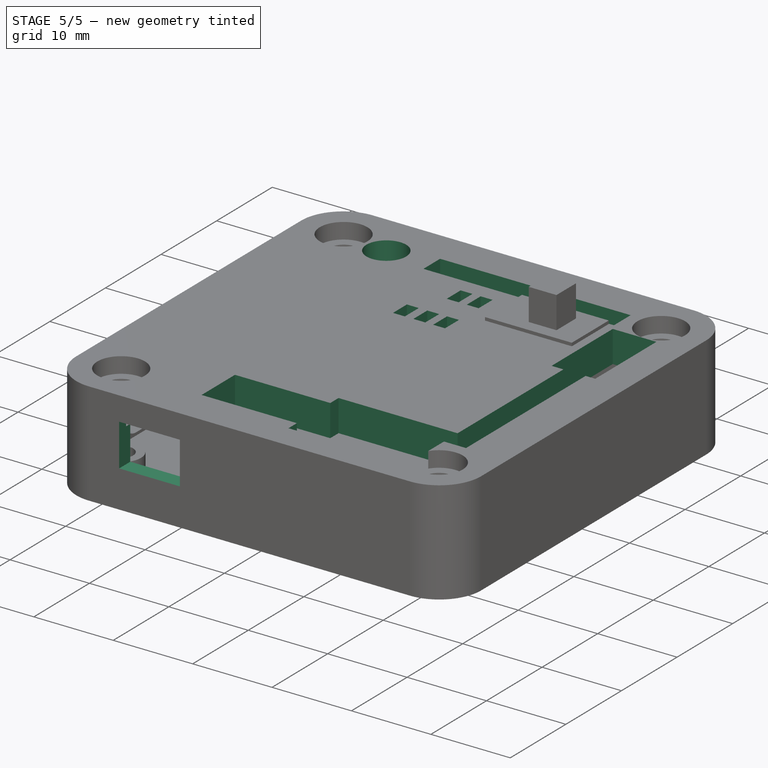
[diagram: stage 5 of 5 — iso view after this stage's code; geometry added in this stage tinted green]
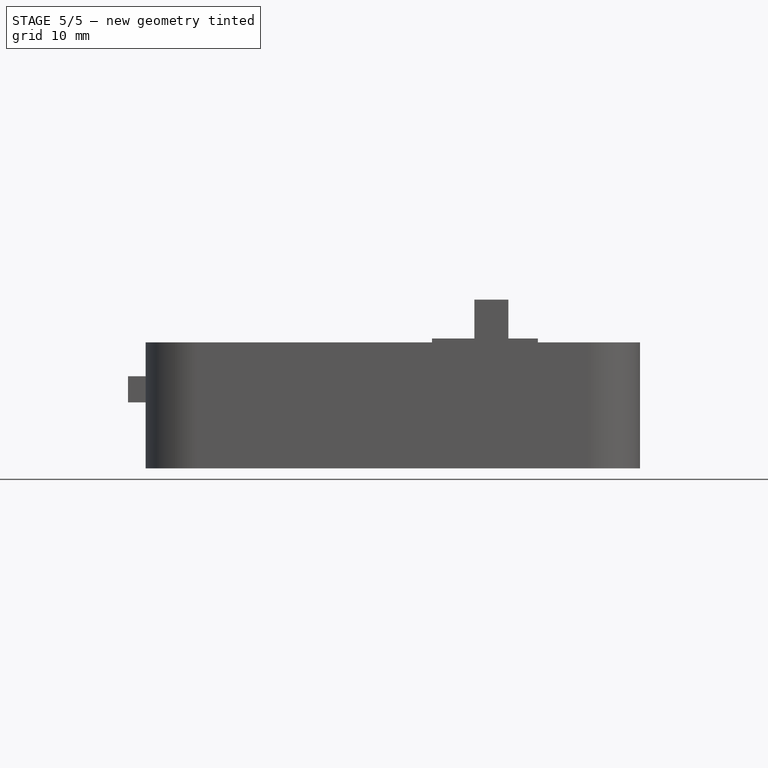
[diagram: stage 5 of 5 — front view after this stage's code; geometry added in this stage tinted green]
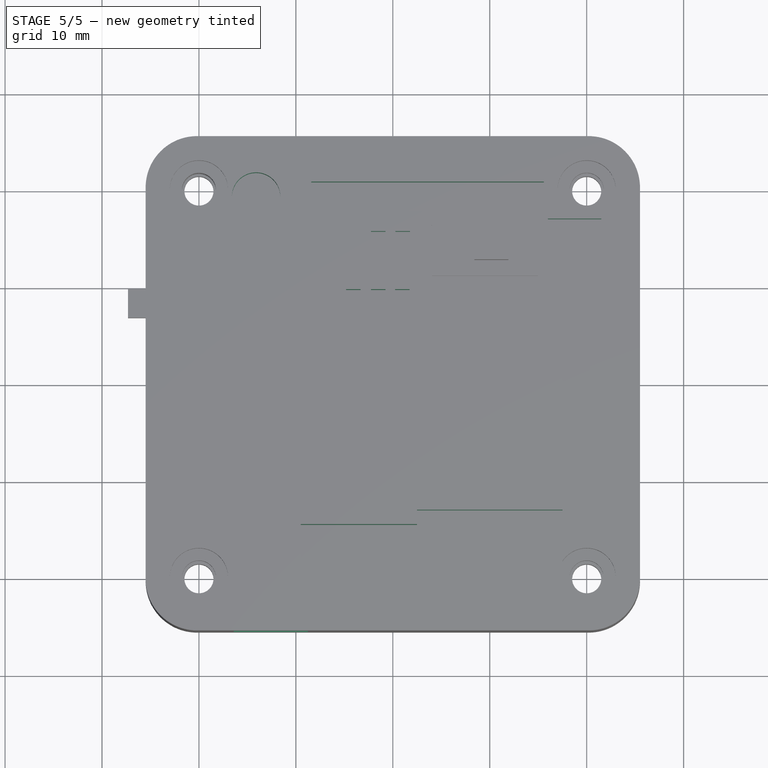
[diagram: stage 5 of 5 — top view after this stage's code; geometry added in this stage tinted green]
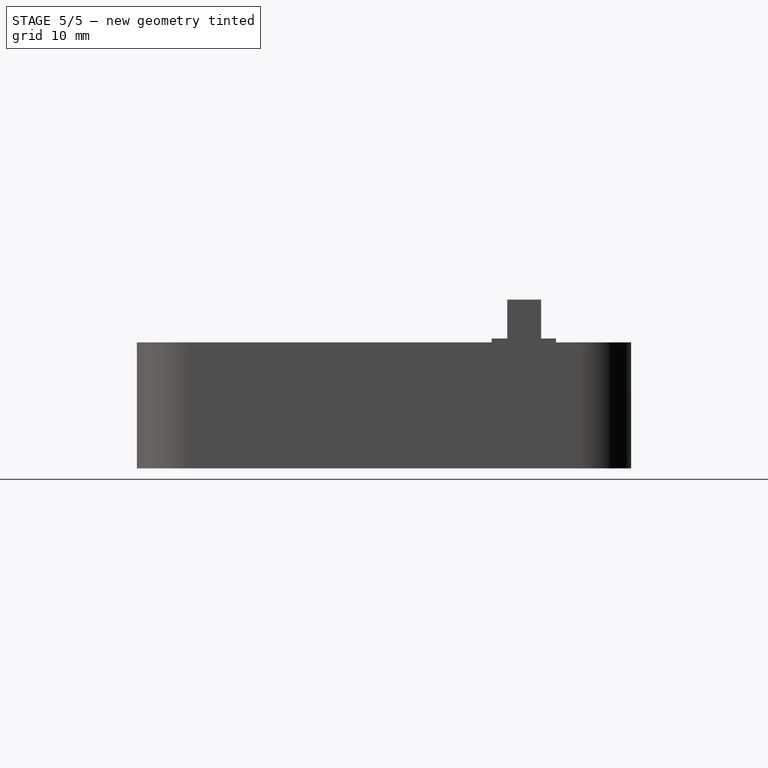
[diagram: stage 5 of 5 — right view after this stage's code; geometry added in this stage tinted green]
FEATURE [PartDesign::FeatureBase] BaseFeature
  BaseFeature = -> Cut001
FEATURE [Sketcher::SketchObject] Sketch009  label="Voltage Switch Cutout Sketch"
  FullyConstrained = false
  MapMode = 5
  Placement = pos=(-25.5,0,0) rot=(0.57735,-0.57735,-0.57735;2.0944rad)
  Support = -> [BaseFeature]
  sketch-geometry (4):
    g0: LineSegment StartX=-12.842 StartY=6.08226 StartZ=0 EndX=-2.23477 EndY=6.08226 EndZ=0
    g1: LineSegment StartX=-2.23477 StartY=6.08226 StartZ=0 EndX=-2.23477 EndY=10.517 EndZ=0
    g2: LineSegment StartX=-2.23477 StartY=10.517 StartZ=0 EndX=-12.842 EndY=10.517 EndZ=0
    g3: LineSegment StartX=-12.842 StartY=10.517 StartZ=0 EndX=-12.842 EndY=6.08226 EndZ=0
  constraints (8):
    c: Coincident(g0,g1)
    c: Coincident(g1,g2)
    c: Coincident(g2,g3)
    c: Coincident(g3,g0)
    c: Horizontal(g0)
    c: Horizontal(g2)
    c: Vertical(g1)
    c: Vertical(g3)
FEATURE [PartDesign::Pocket] Pocket003  label="Voltage Switch Cutout"
  BaseFeature = -> BaseFeature
  Length = 5
  Length2 = 100
  Placement = pos=(0,0,-40) rot=(0,0,1;0rad)
  Profile = -> Sketch009
  Type = 0
FEATURE [Sketcher::SketchObject] Sketch010  label="I2C Cutout Sketch"
  FullyConstrained = false
  MapMode = 5
  Placement = pos=(0,-25.5,0) rot=(1,0,0;1.5708rad)
  Support = -> [Pocket003]
  sketch-geometry (4):
    g0: LineSegment StartX=-8.76633 StartY=4.68576 StartZ=0 EndX=-16.4093 EndY=4.68576 EndZ=0
    g1: LineSegment StartX=-16.4093 StartY=4.68576 StartZ=0 EndX=-16.4093 EndY=10.0143 EndZ=0
    g2: LineSegment StartX=-16.4093 StartY=10.0143 StartZ=0 EndX=-8.76633 EndY=10.0143 EndZ=0
    g3: LineSegment StartX=-8.76633 StartY=10.0143 StartZ=0 EndX=-8.76633 EndY=4.68576 EndZ=0
  constraints (8):
    c: Coincident(g0,g1)
    c: Coincident(g1,g2)
    c: Coincident(g2,g3)
    c: Coincident(g3,g0)
    c: Horizontal(g0)
    c: Horizontal(g2)
    c: Vertical(g1)
    c: Vertical(g3)
FEATURE [PartDesign::Pocket] Pocket004  label="I2C Cutout"
  BaseFeature = -> Pocket003
  Length = 5
  Length2 = 100
  Profile = -> Sketch010
  Type = 0
FEATURE [PartDesign::FeatureBase] BaseFeature001
  BaseFeature = -> Cut
FEATURE [Sketcher::SketchObject] Sketch011  label="Lid Cutout Sketch"
  FullyConstrained = false
  MapMode = 5
  Placement = pos=(0,0,13) rot=(0,0,1;0rad)
  Support = -> [BaseFeature001]
  sketch-geometry (45):
    g0: LineSegment StartX=4.02651 StartY=16.3347 StartZ=0 EndX=13.0689 EndY=16.3347 EndZ=0
    g1: LineSegment StartX=13.0689 StartY=16.3347 StartZ=0 EndX=13.0689 EndY=12.5671 EndZ=0
    g2: LineSegment StartX=13.0689 StartY=12.5671 StartZ=0 EndX=4.02651 EndY=12.5671 EndZ=0
    g3: LineSegment StartX=4.02651 StartY=12.5671 StartZ=0 EndX=4.02651 EndY=16.3347 EndZ=0
    g4: LineSegment StartX=15.9986 StartY=16.9943 StartZ=0 EndX=21.4986 EndY=16.9943 EndZ=0
    g5: LineSegment StartX=21.4986 StartY=16.9943 StartZ=0 EndX=21.4986 EndY=5.99431 EndZ=0
    g6: LineSegment StartX=15.9986 StartY=5.99431 StartZ=0 EndX=15.9986 EndY=16.9943 EndZ=0
    g7: LineSegment StartX=20.2805 StartY=5.99431 StartZ=0 EndX=20.2805 EndY=-15.5057 EndZ=0
    g8: LineSegment StartX=20.2805 StartY=-15.5057 StartZ=0 EndX=17.5 EndY=-15.5057 EndZ=0
    g9: LineSegment StartX=17.5 StartY=-13.0474 StartZ=0 EndX=17.5 EndY=5.99431 EndZ=0
    g10: LineSegment StartX=-8.41441 StartY=20.8038 StartZ=0 EndX=15.5856 EndY=20.8038 EndZ=0
    g11: LineSegment StartX=15.5856 StartY=20.8038 StartZ=0 EndX=15.5856 EndY=17.8038 EndZ=0
    g12: LineSegment StartX=15.5856 StartY=17.8038 StartZ=0 EndX=-8.41441 EndY=17.8038 EndZ=0
    g13: LineSegment StartX=-8.41441 StartY=17.8038 StartZ=0 EndX=-8.41441 EndY=20.8038 EndZ=0
    g14: LineSegment StartX=15.9986 StartY=5.99431 StartZ=0 EndX=17.5 EndY=5.99431 EndZ=0
    g15: LineSegment StartX=20.2805 StartY=5.99431 StartZ=0 EndX=21.4986 EndY=5.99431 EndZ=0
    g16: LineSegment StartX=-2.2549 StartY=15.7 StartZ=0 EndX=-0.754905 EndY=15.7 EndZ=0
    g17: LineSegment StartX=-0.754905 StartY=15.7 StartZ=0 EndX=-0.754905 EndY=13.2 EndZ=0
    g18: LineSegment StartX=-0.754905 StartY=13.2 StartZ=0 EndX=-2.2549 EndY=13.2 EndZ=0
    g19: LineSegment StartX=-2.2549 StartY=13.2 StartZ=0 EndX=-2.2549 EndY=15.7 EndZ=0
    g20: LineSegment StartX=0.270606 StartY=15.7 StartZ=0 EndX=1.77061 EndY=15.7 EndZ=0
    g21: LineSegment StartX=1.77061 StartY=15.7 StartZ=0 EndX=1.77061 EndY=13.2 EndZ=0
    g22: LineSegment StartX=1.77061 StartY=13.2 StartZ=0 EndX=0.270606 EndY=13.2 EndZ=0
    g23: LineSegment StartX=0.270606 StartY=13.2 StartZ=0 EndX=0.270606 EndY=15.7 EndZ=0
    g24: LineSegment StartX=0.239071 StartY=9.7 StartZ=0 EndX=1.73907 EndY=9.7 EndZ=0
    g25: LineSegment StartX=1.73907 StartY=9.7 StartZ=0 EndX=1.73907 EndY=7.2 EndZ=0
    g26: LineSegment StartX=1.73907 StartY=7.2 StartZ=0 EndX=0.239071 EndY=7.2 EndZ=0
    g27: LineSegment StartX=0.239071 StartY=7.2 StartZ=0 EndX=0.239071 EndY=9.7 EndZ=0
    g28: LineSegment StartX=-2.24916 StartY=9.7 StartZ=0 EndX=-0.749158 EndY=9.7 EndZ=0
    g29: LineSegment StartX=-0.749158 StartY=9.7 StartZ=0 EndX=-0.749158 EndY=7.2 EndZ=0
    g30: LineSegment StartX=-0.749158 StartY=7.2 StartZ=0 EndX=-2.24916 EndY=7.2 EndZ=0
    g31: LineSegment StartX=-2.24916 StartY=7.2 StartZ=0 EndX=-2.24916 EndY=9.7 EndZ=0
    g32: LineSegment StartX=-4.81914 StartY=9.7 StartZ=0 EndX=-3.31914 EndY=9.7 EndZ=0
    g33: LineSegment StartX=-3.31914 StartY=9.7 StartZ=0 EndX=-3.31914 EndY=7.2 EndZ=0
    g34: LineSegment StartX=-3.31914 StartY=7.2 StartZ=0 EndX=-4.81914 EndY=7.2 EndZ=0
    g35: LineSegment StartX=-4.81914 StartY=7.2 StartZ=0 EndX=-4.81914 EndY=9.7 EndZ=0
    g36: LineSegment StartX=-9.5 StartY=-14.5357 StartZ=0 EndX=2.5 EndY=-14.5357 EndZ=0
    g37: LineSegment StartX=2.5 StartY=-20.5357 StartZ=0 EndX=-9.5 EndY=-20.5357 EndZ=0
    g38: LineSegment StartX=-9.5 StartY=-20.5357 StartZ=0 EndX=-9.5 EndY=-14.5357 EndZ=0
    g39: LineSegment StartX=2.5 StartY=-13.0474 StartZ=0 EndX=17.5 EndY=-13.0474 EndZ=0
    g40: LineSegment StartX=17.5 StartY=-15.5057 StartZ=0 EndX=17.5 EndY=-22.0474 EndZ=0
    g41: LineSegment StartX=17.5 StartY=-22.0474 StartZ=0 EndX=2.5 EndY=-22.0474 EndZ=0
    g42: LineSegment StartX=2.5 StartY=-22.0474 StartZ=0 EndX=2.5 EndY=-20.5357 EndZ=0
    g43: LineSegment StartX=2.5 StartY=-14.5357 StartZ=0 EndX=2.5 EndY=-13.0474 EndZ=0
    g44: Circle CenterX=-14.1023 CenterY=19.26 CenterZ=0 NormalX=0 NormalY=0 NormalZ=1 AngleXU=0 Radius=2.5
  constraints (115):
    c: Coincident(g0,g1)
    c: Coincident(g1,g2)
    c: Coincident(g2,g3)
    c: Coincident(g3,g0)
    c: Horizontal(g0)
    c: Horizontal(g2)
    c: Vertical(g1)
    c: Vertical(g3)
    c: Coincident(g4,g5)
    c: Coincident(g6,g4)
    c: Horizontal(g4)
    c: Vertical(g5)
    c: Vertical(g6)
    c: Coincident(g7,g8)
    c: Horizontal(g8)
    c: Vertical(g7)
    c: Vertical(g9)
    c: Distance(g7) = 21.5
    c: Coincident(g10,g11)
    c: Coincident(g11,g12)
    c: Coincident(g12,g13)
    c: Coincident(g13,g10)
    c: Horizontal(g10)
    c: Horizontal(g12)
    c: Vertical(g11)
    c: Vertical(g13)
    c: Distance(g10) = 24
    c: Distance(g13) = 3
    c: Distance(g4) = 5.5
    c: Coincident(g14,g6)
    c: Coincident(g14,g9)
    c: Horizontal(g14)
    c: Coincident(g15,g7)
    c: Coincident(g15,g5)
    c: Horizontal(g15)
    c: Distance(g5) = 11
    c: Equal(g5,g6)
    c: Coincident(g16,g17)
    c: Coincident(g17,g18)
    c: Coincident(g18,g19)
    c: Coincident(g19,g16)
    c: Horizontal(g16)
    c: Horizontal(g18)
    c: Vertical(g17)
    c: Vertical(g19)
    c: Coincident(g20,g21)
    c: Coincident(g21,g22)
    c: Coincident(g22,g23)
    c: Coincident(g23,g20)
    c: Horizontal(g20)
    c: Horizontal(g22)
    c: Vertical(g21)
    c: Vertical(g23)
    c: Coincident(g24,g25)
    c: Coincident(g25,g26)
    c: Coincident(g26,g27)
    c: Coincident(g27,g24)
    c: Horizontal(g24)
    c: Horizontal(g26)
    c: Vertical(g25)
    c: Vertical(g27)
    c: Coincident(g28,g29)
    c: Coincident(g29,g30)
    c: Coincident(g30,g31)
    c: Coincident(g31,g28)
    c: Horizontal(g28)
    c: Horizontal(g30)
    c: Vertical(g29)
    c: Vertical(g31)
    c: Coincident(g32,g33)
    c: Coincident(g33,g34)
    c: Coincident(g34,g35)
    c: Coincident(g35,g32)
    c: Horizontal(g32)
    c: Horizontal(g34)
    c: Vertical(g33)
    c: Vertical(g35)
    c: Coincident(g37,g38)
    c: Coincident(g38,g36)
    c: Horizontal(g36)
    c: Horizontal(g37)
    c: Vertical(g38)
    c: Distance(g36) = 12
    c: Distance(g38) = 6
    c: Coincident(g40,g41)
    c: Coincident(g41,g42)
    c: Coincident(g43,g39)
    c: Horizontal(g39)
    c: Horizontal(g41)
    c: Vertical(g40)
    c: Vertical(g42)
    c: Distance(g39) = 15
    c: Coincident(g42,g37)
    c: Coincident(g43,g36)
    c: Tangent(g42,g43)
    c: Distance(g19) = 2.5
    c: Distance(g16) = 1.5
    c: Equal(g19,g23)
    c: Equal(g16,g20)
    c: Equal(g16,g28)
    c: Equal(g19,g31)
    c: Equal(g31,g27)
    c: Equal(g31,g35)
    c: Equal(g18,g32)
    c: Equal(g18,g24)
    c: Distance(g-1,g34) = 7.2
    c: Distance(g-1,g26) = 7.2
    c: Distance(g-1,g30) = 7.2
    c: Distance(g-1,g18) = 13.2
    c: Distance(g-1,g22) = 13.2
    c: Radius(g44) = 2.5
    c: Distance(g-1,g40) = 17.5
    c: Coincident(g9,g39)
    c: PointOnObject(g40,g8)
    c: DistanceX(g-2,g39) = 2.5
FEATURE [PartDesign::Pocket] Pocket005  label="Lid Cutouts"
  BaseFeature = -> BaseFeature001
  Length = 5
  Length2 = 100
  Profile = -> Sketch011
  Type = 0
FEATURE [Sketcher::SketchObject] Sketch012  label="Switch-Lid Indent Sketch"
  FullyConstrained = false
  MapMode = 5
  Placement = pos=(0,0,9) rot=(1,0,0;3.14159rad)
  Support = -> [Pocket005]
  sketch-geometry (8):
    g0: LineSegment StartX=-20.8484 StartY=1.12147 StartZ=0 EndX=-15.2184 EndY=1.12147 EndZ=0
    g1: LineSegment StartX=-15.2184 StartY=1.12147 StartZ=0 EndX=-15.2184 EndY=-15.7685 EndZ=0
    g2: LineSegment StartX=-15.2184 StartY=-15.7685 StartZ=0 EndX=-20.8484 EndY=-15.7685 EndZ=0
    g3: LineSegment StartX=-20.8484 StartY=-15.7685 StartZ=0 EndX=-20.8484 EndY=1.12147 EndZ=0
    g4: LineSegment StartX=1.95221 StartY=-11.0754 StartZ=0 EndX=15.1288 EndY=-11.0754 EndZ=0
    g5: LineSegment StartX=15.1288 StartY=-11.0754 StartZ=0 EndX=15.1288 EndY=-18.1428 EndZ=0
    g6: LineSegment StartX=15.1288 StartY=-18.1428 StartZ=0 EndX=1.95221 EndY=-18.1428 EndZ=0
    g7: LineSegment StartX=1.95221 StartY=-18.1428 StartZ=0 EndX=1.95221 EndY=-11.0754 EndZ=0
  constraints (16):
    c: Coincident(g0,g1)
    c: Coincident(g1,g2)
    c: Coincident(g2,g3)
    c: Coincident(g3,g0)
    c: Horizontal(g0)
    c: Horizontal(g2)
    c: Vertical(g1)
    c: Vertical(g3)
    c: Coincident(g4,g5)
    c: Coincident(g5,g6)
    c: Coincident(g6,g7)
    c: Coincident(g7,g4)
    c: Horizontal(g4)
    c: Horizontal(g6)
    c: Vertical(g5)
    c: Vertical(g7)
FEATURE [PartDesign::Pocket] Pocket006  label="Switch-Lid Indents"
  BaseFeature = -> Pocket005
  Length = 0.5
  Length2 = 100
  Placement = pos=(0,0,80) rot=(0,0,1;0rad)
  Profile = -> Sketch012
  Type = 0
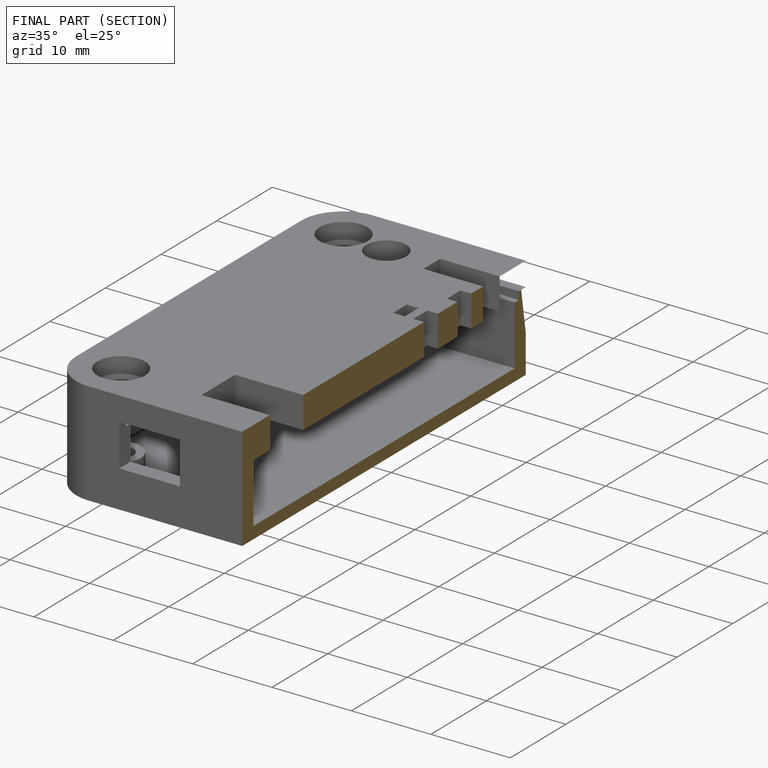
[diagram: finished part — half-section view (interior)]
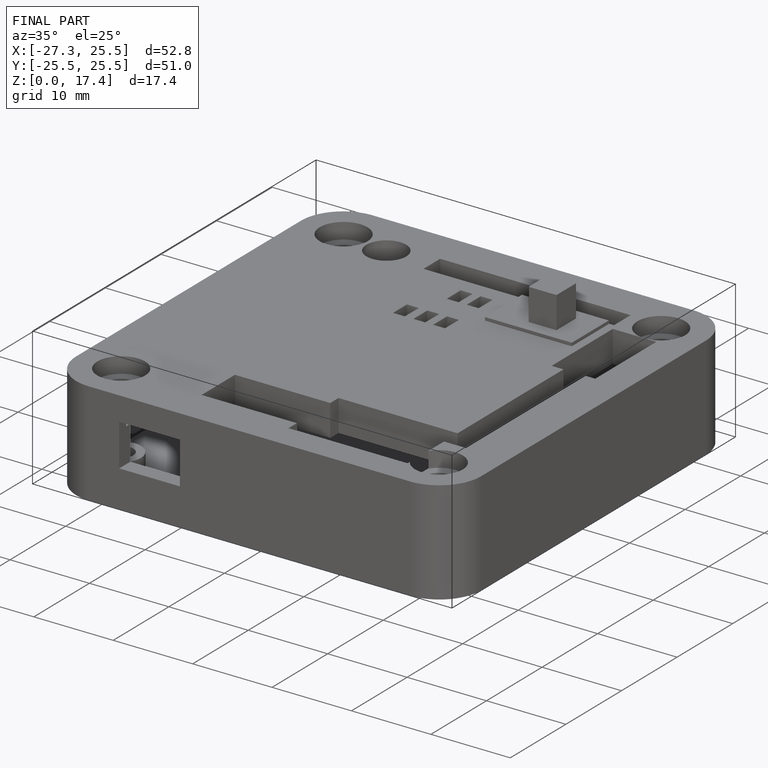
[diagram: finished part — iso view with bounding-box wireframe]
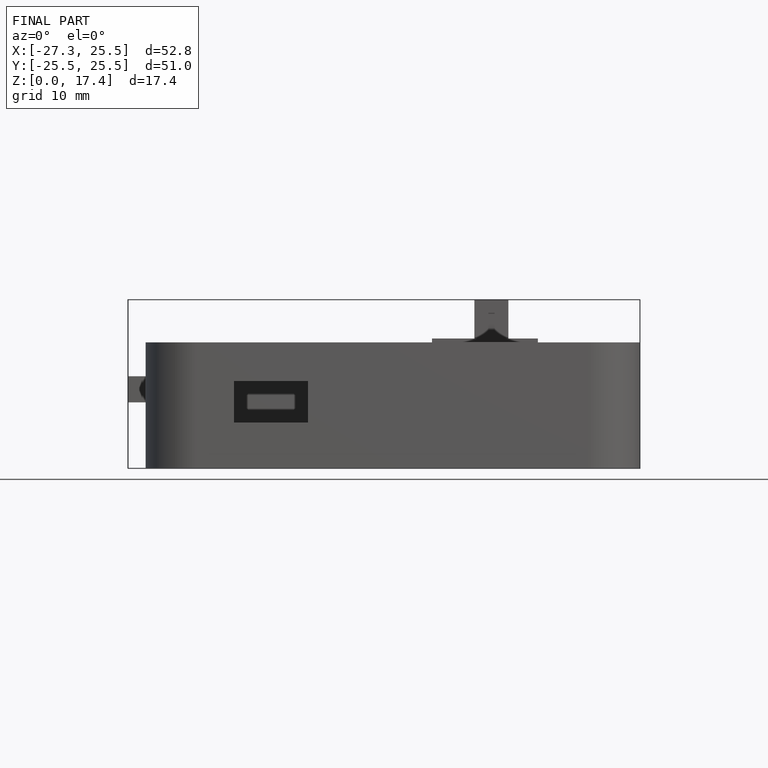
[diagram: finished part — front view with bounding-box wireframe]
